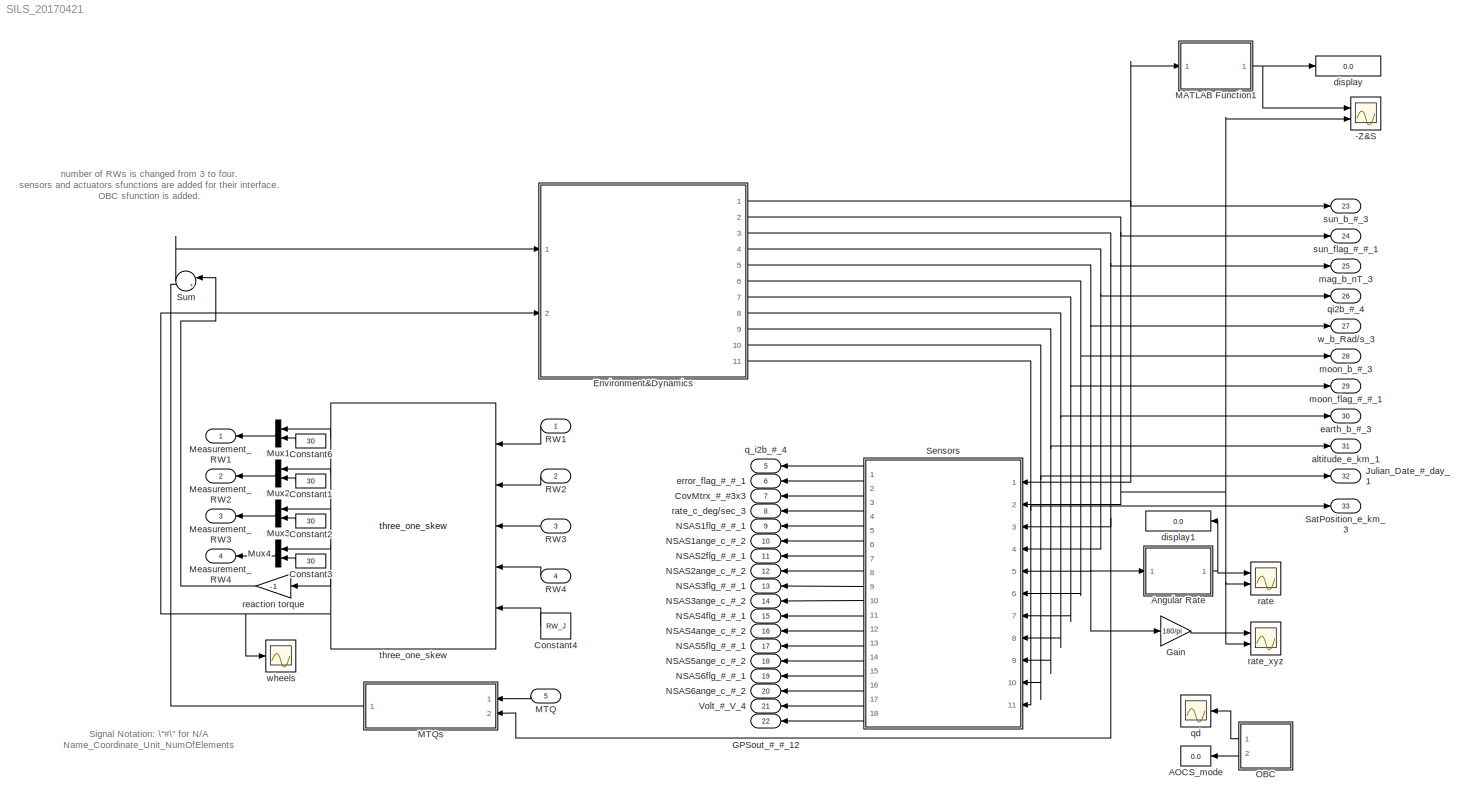
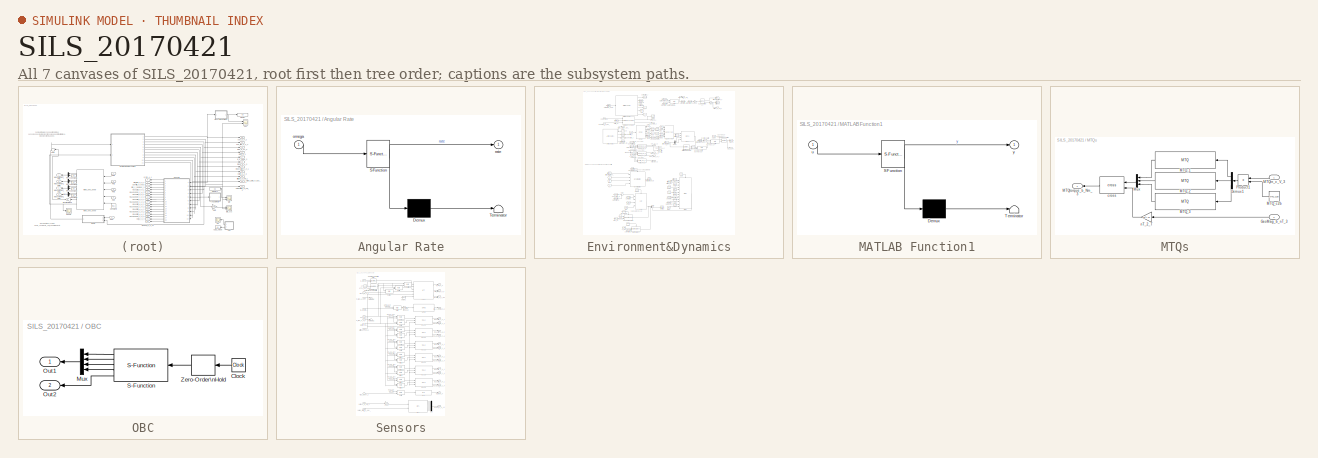
[diagram: thumbnail index - all 7 canvases of the model, root first then tree order]
MODEL SILS_20170421
KIND model
CONFIG PreLoadFcn = start\nmake_SILS\nparam_SW\nparam_sys\nparam_component\nparam_env\nparam_alignment\nOEread\ninitialCondition\n
BLOCK [Scope] -Z&S
  Floating = off
  NumInputPorts = 2
  Ports = [2]
  SID = 634
  ScopeSpecificationString = C++SS(StrPVP('Location','[33, 200, 738, 629]'),StrPVP('Open','off'),StrPVP('ZoomMode','yonly'),MxPVP('AxesTitles',54,'struct(''axes1'',''%<SignalLabel>'',''axes2'',''%<SignalLabel>'')'),MxPVP('ScopeGraphics',57,'struct(''FigureColor'',''[0.5 0.5 0.5]'',''AxesColor'',''[0 0 0]'',''AxesTickColor'',''[1 1 1]'',''LineColors'',''[1 1 0;1 0 1;0 1 1;1 0 0;0 1 0;0 0 1]'',''LineStyles'',''-|-|-|-|-|-'',''L...<+398ch>
BLOCK [Display] AOCS_mode
  Decimation = 1
  Ports = [1]
  SID = 581
BLOCK [SubSystem] Angular Rate
  ErrorFcn = Stateflow.Translate.translate
  PermitHierarchicalResolution = ExplicitOnly
  Ports = [1, 1]
  RequestExecContextInheritance = off
  SFBlockType = MATLAB Function
  SID = 635
  TreatAsAtomicUnit = on
BLOCK [Demux] Angular Rate/ Demux 
  Outputs = 1
  Ports = [1, 1]
  SID = 635::378
BLOCK [S-Function] Angular Rate/ SFunction 
  EnableBusSupport = on
  FunctionName = sf_sfun
  PortCounts = [1 2]
  Ports = [1, 2]
  SFcnIsStateOwnerBlock = off
  SFunctionDeploymentMode = off
  SID = 635::377
  Tag = Stateflow S-Function 6
BLOCK [Terminator] Angular Rate/ Terminator 
  SID = 635::379
BLOCK [Inport] Angular Rate/omega
  SID = 635::1
BLOCK [Outport] Angular Rate/rate
  SID = 635::5
BLOCK [Constant] Constant1
  NameLocation = top
  SID = 550
  Value = 30
BLOCK [Constant] Constant2
  NameLocation = top
  SID = 553
  Value = 30
BLOCK [Constant] Constant3
  NameLocation = top
  SID = 556
  Value = 30
BLOCK [Constant] Constant4
  NameLocation = top
  SID = 559
  Value = RW_J
BLOCK [Constant] Constant6
  NameLocation = top
  SID = 547
  Value = 30
BLOCK [Outport] CovMtrx_#_#3x3
  NameLocation = top
  Port = 7
  SID = 668
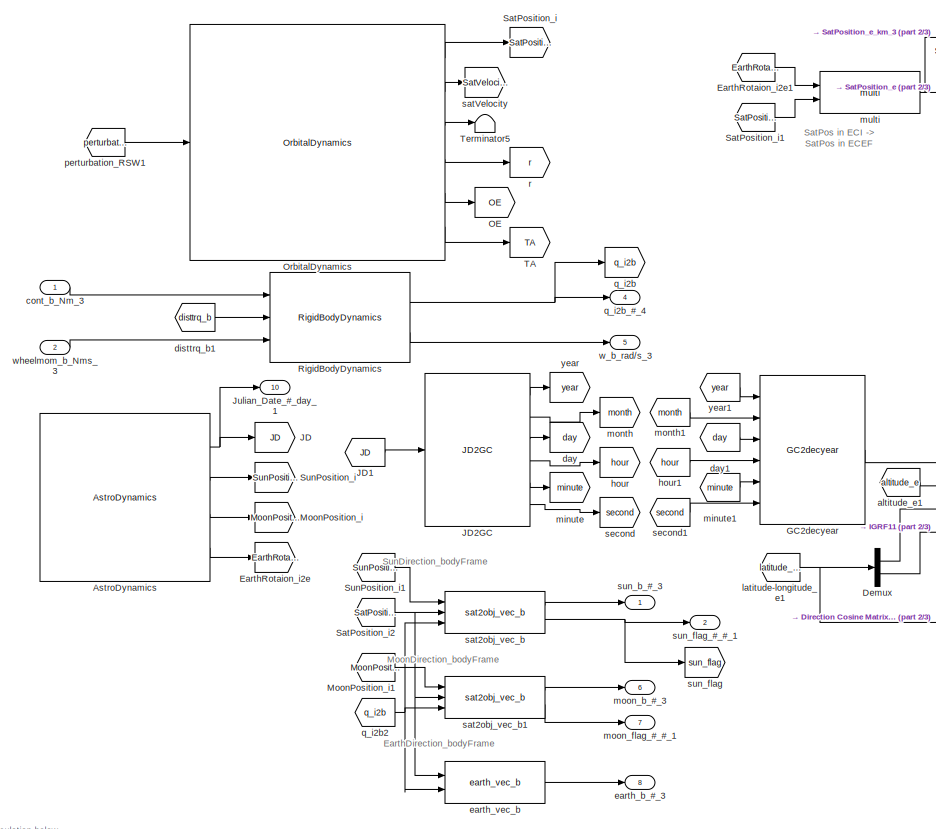
[diagram: Environment&Dynamics - part 1/3, top center region]
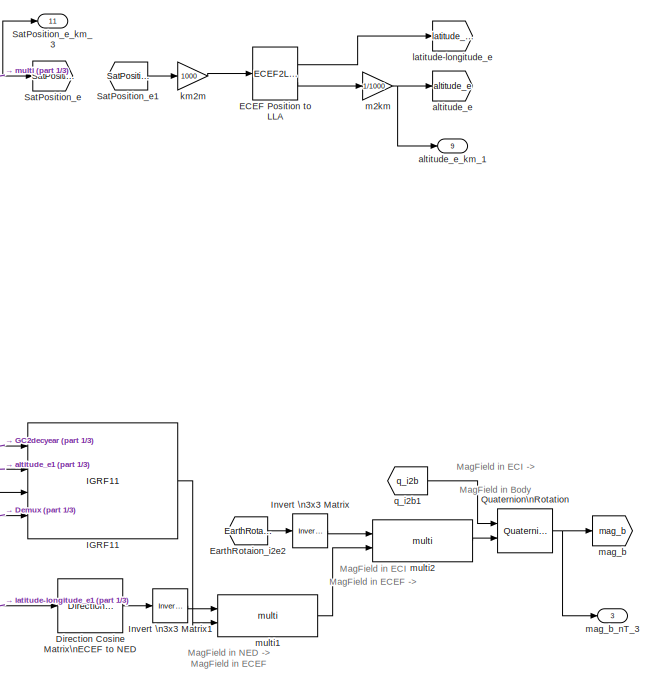
[diagram: Environment&Dynamics - part 2/3, top right region]
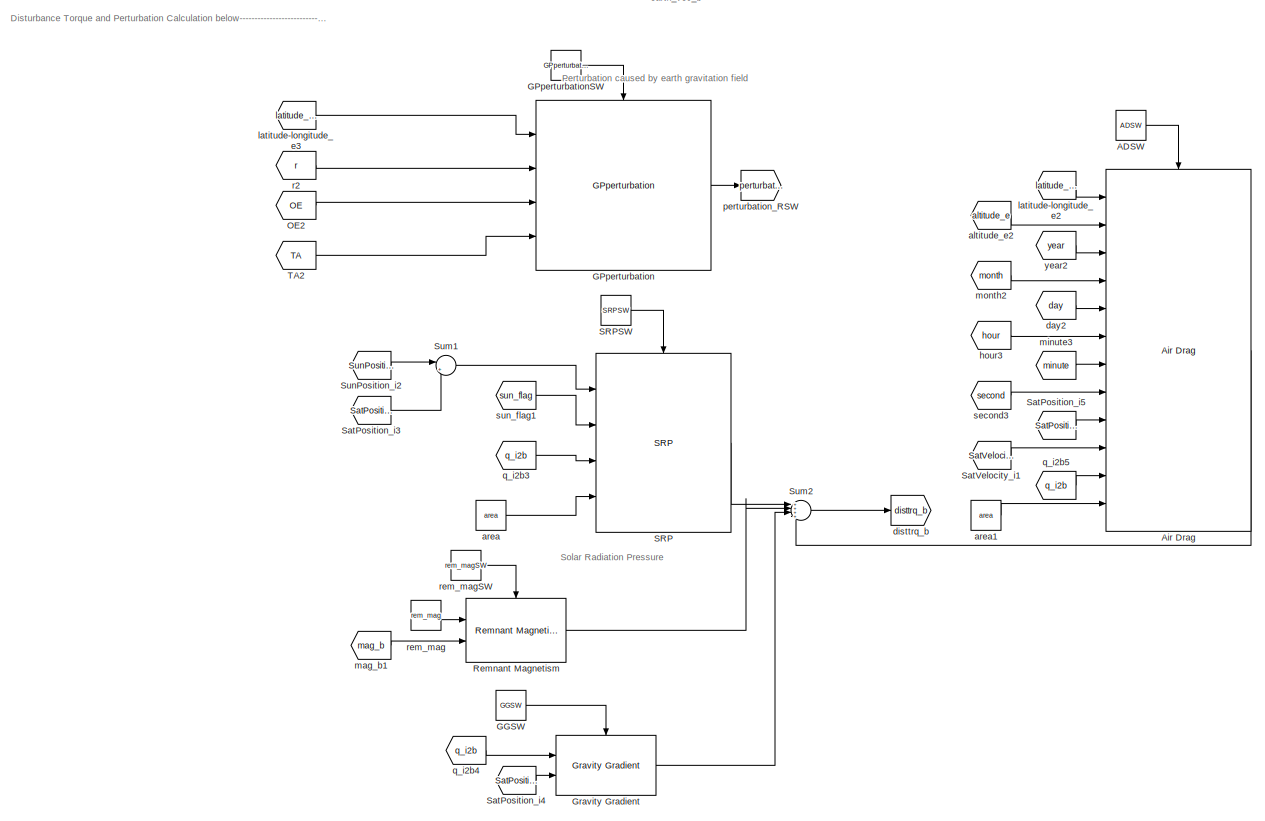
[diagram: Environment&Dynamics - part 3/3, bottom center region]
BLOCK [SubSystem] Environment&Dynamics
  Ports = [2, 11]
  RequestExecContextInheritance = off
  SID = 102
BLOCK [Constant] Environment&Dynamics/ADSW
  SID = 423
  Value = ADSW
BLOCK [Reference] Environment&Dynamics/Air Drag  REF=lib_env/Environment&Dynamics/Air Drag  (lib defined in mdl_9d5cf06e00da)
  AllowZeroVariantControls = off
  AutoFrameSizeCalculation = off
  Latency = 0
  Ports = [12, 1, 1]
  PropagateVariantConditions = off
  RTWMemSecDataConstants = Inherit from model
  RTWMemSecDataInternal = Inherit from model
  RTWMemSecDataParameters = Inherit from model
  RTWMemSecFuncExecute = Inherit from model
  RTWMemSecFuncInitTerm = Inherit from model
  SID = 424
  ShowPortLabels = FromPortIcon
  SourceBlock = lib_env/Environment&Dynamics/Air Drag
  SourceType = SubSystem
  SystemSampleTime = -1
  VariantActivationTime = update diagram
BLOCK [Reference] Environment&Dynamics/AstroDynamics  REF=lib_env/Environment&Dynamics/AstroDynamics  (lib defined in mdl_9d5cf06e00da)
  AllowZeroVariantControls = off
  AutoFrameSizeCalculation = off
  Latency = 0
  Ports = [0, 4]
  PropagateVariantConditions = off
  RTWMemSecDataConstants = Inherit from model
  RTWMemSecDataInternal = Inherit from model
  RTWMemSecDataParameters = Inherit from model
  RTWMemSecFuncExecute = Inherit from model
  RTWMemSecFuncInitTerm = Inherit from model
  SID = 162
  ShowPortLabels = FromPortIcon
  SourceBlock = lib_env/Environment&Dynamics/AstroDynamics
  SourceType = SubSystem
  SystemSampleTime = -1
  VariantActivationTime = update diagram
BLOCK [Demux] Environment&Dynamics/Demux
  Outputs = 2
  Ports = [1, 2]
  SID = 168
BLOCK [Reference] Environment&Dynamics/Direction Cosine Matrix\nECEF to NED  REF=aerolibtransform2/Direction Cosine Matrix\nECEF to NED
  Ports = [1, 1]
  RTWMemSecDataConstants = Inherit from model
  RTWMemSecDataInternal = Inherit from model
  RTWMemSecDataParameters = Inherit from model
  RTWMemSecFuncExecute = Inherit from model
  RTWMemSecFuncInitTerm = Inherit from model
  SID = 169
  SourceBlock = aerolibtransform2/Direction Cosine Matrix\nECEF to NED
  SourceProductBaseCode = AE
  SourceType = DCM ECEF to NED
BLOCK [ECEF2LLA] Environment&Dynamics/ECEF Position to LLA
  Ports = [1, 2]
  R = 6378137
  SID = 170
BLOCK [Goto] Environment&Dynamics/EarthRotaion_i2e
  GotoTag = EarthRotaion_i2e
  SID = 163
BLOCK [From] Environment&Dynamics/EarthRotaion_i2e1
  GotoTag = EarthRotaion_i2e
  SID = 171
BLOCK [From] Environment&Dynamics/EarthRotaion_i2e2
  GotoTag = EarthRotaion_i2e
  SID = 172
BLOCK [Reference] Environment&Dynamics/GC2decyear  REF=lib_util/GC2decyear  (lib defined in mdl_263c60253fa7)
  AllowZeroVariantControls = off
  AutoFrameSizeCalculation = off
  Latency = 0
  Ports = [6, 1]
  PropagateVariantConditions = off
  RTWMemSecDataConstants = Inherit from model
  RTWMemSecDataInternal = Inherit from model
  RTWMemSecDataParameters = Inherit from model
  RTWMemSecFuncExecute = Inherit from model
  RTWMemSecFuncInitTerm = Inherit from model
  SID = 173
  ShowPortLabels = FromPortIcon
  SourceBlock = lib_util/GC2decyear
  SourceType = SubSystem
  SystemSampleTime = -1
  VariantActivationTime = update diagram
BLOCK [Constant] Environment&Dynamics/GGSW
  SID = 425
  Value = GGSW
BLOCK [Reference] Environment&Dynamics/GPperturbation  REF=lib_env/Environment&Dynamics/GPperturbation  (lib defined in mdl_9d5cf06e00da)
  AllowZeroVariantControls = off
  AutoFrameSizeCalculation = off
  Latency = 0
  Ports = [4, 1, 1]
  PropagateVariantConditions = off
  RTWMemSecDataConstants = Inherit from model
  RTWMemSecDataInternal = Inherit from model
  RTWMemSecDataParameters = Inherit from model
  RTWMemSecFuncExecute = Inherit from model
  RTWMemSecFuncInitTerm = Inherit from model
  SID = 426
  ShowPortLabels = FromPortIcon
  SourceBlock = lib_env/Environment&Dynamics/GPperturbation
  SourceType = SubSystem
  SystemSampleTime = -1
  VariantActivationTime = update diagram
BLOCK [Constant] Environment&Dynamics/GPperturbationSW
  SID = 427
  Value = GPperturbationSW
BLOCK [Reference] Environment&Dynamics/Gravity Gradient  REF=lib_env/Environment&Dynamics/Gravity Gradient  (lib defined in mdl_9d5cf06e00da)
  AllowZeroVariantControls = off
  AutoFrameSizeCalculation = off
  Latency = 0
  Ports = [2, 1, 1]
  PropagateVariantConditions = off
  RTWMemSecDataConstants = Inherit from model
  RTWMemSecDataInternal = Inherit from model
  RTWMemSecDataParameters = Inherit from model
  RTWMemSecFuncExecute = Inherit from model
  RTWMemSecFuncInitTerm = Inherit from model
  SID = 428
  ShowPortLabels = FromPortIcon
  SourceBlock = lib_env/Environment&Dynamics/Gravity Gradient
  SourceType = SubSystem
  SystemSampleTime = -1
  VariantActivationTime = update diagram
BLOCK [Reference] Environment&Dynamics/IGRF11  REF=lib_env/IGRF11  (lib defined in mdl_9d5cf06e00da)
  AllowZeroVariantControls = off
  AutoFrameSizeCalculation = off
  Latency = 0
  Ports = [4, 1]
  PropagateVariantConditions = off
  RTWMemSecDataConstants = Inherit from model
  RTWMemSecDataInternal = Inherit from model
  RTWMemSecDataParameters = Inherit from model
  RTWMemSecFuncExecute = Inherit from model
  RTWMemSecFuncInitTerm = Inherit from model
  SID = 174
  ShowPortLabels = FromPortIcon
  SourceBlock = lib_env/IGRF11
  SourceType = SubSystem
  SystemSampleTime = -1
  VariantActivationTime = update diagram
BLOCK [Reference] Environment&Dynamics/Invert \n3x3 Matrix  REF=aerolibutil/Invert \n3x3 Matrix
  Ports = [1, 1]
  RTWMemSecDataConstants = Inherit from model
  RTWMemSecDataInternal = Inherit from model
  RTWMemSecDataParameters = Inherit from model
  RTWMemSecFuncExecute = Inherit from model
  RTWMemSecFuncInitTerm = Inherit from model
  SID = 175
  SourceBlock = aerolibutil/Invert \n3x3 Matrix
  SourceProductBaseCode = AE
  SourceType = Invert 3x3 Matrix
BLOCK [Reference] Environment&Dynamics/Invert \n3x3 Matrix1  REF=aerolibutil/Invert \n3x3 Matrix
  Ports = [1, 1]
  RTWMemSecDataConstants = Inherit from model
  RTWMemSecDataInternal = Inherit from model
  RTWMemSecDataParameters = Inherit from model
  RTWMemSecFuncExecute = Inherit from model
  RTWMemSecFuncInitTerm = Inherit from model
  SID = 176
  SourceBlock = aerolibutil/Invert \n3x3 Matrix
  SourceProductBaseCode = AE
  SourceType = Invert 3x3 Matrix
BLOCK [Goto] Environment&Dynamics/JD
  GotoTag = JD
  SID = 164
BLOCK [From] Environment&Dynamics/JD1
  GotoTag = JD
  SID = 177
BLOCK [Reference] Environment&Dynamics/JD2GC  REF=lib_util/JD2GC  (lib defined in mdl_263c60253fa7)
  AllowZeroVariantControls = off
  AutoFrameSizeCalculation = off
  Latency = 0
  Ports = [1, 6]
  PropagateVariantConditions = off
  RTWMemSecDataConstants = Inherit from model
  RTWMemSecDataInternal = Inherit from model
  RTWMemSecDataParameters = Inherit from model
  RTWMemSecFuncExecute = Inherit from model
  RTWMemSecFuncInitTerm = Inherit from model
  SID = 178
  ShowPortLabels = FromPortIcon
  SourceBlock = lib_util/JD2GC
  SourceType = SubSystem
  SystemSampleTime = -1
  VariantActivationTime = update diagram
BLOCK [Outport] Environment&Dynamics/Julian_Date_#_day_1
  Port = 10
  SID = 344
BLOCK [Goto] Environment&Dynamics/MoonPosition_i
  GotoTag = MoonPosition_i
  SID = 253
BLOCK [From] Environment&Dynamics/MoonPosition_i1
  GotoTag = MoonPosition_i
  SID = 240
BLOCK [Goto] Environment&Dynamics/OE
  GotoTag = OE
  SID = 463
BLOCK [From] Environment&Dynamics/OE2
  GotoTag = OE
  SID = 429
BLOCK [Reference] Environment&Dynamics/OrbitalDynamics  REF=lib_env/Environment&Dynamics/OrbitalDynamics  (lib defined in mdl_9d5cf06e00da)
  AllowZeroVariantControls = off
  AutoFrameSizeCalculation = off
  Latency = 0
  Ports = [1, 6]
  PropagateVariantConditions = off
  RTWMemSecDataConstants = Inherit from model
  RTWMemSecDataInternal = Inherit from model
  RTWMemSecDataParameters = Inherit from model
  RTWMemSecFuncExecute = Inherit from model
  RTWMemSecFuncInitTerm = Inherit from model
  SID = 119
  ShowPortLabels = FromPortIcon
  SourceBlock = lib_env/Environment&Dynamics/OrbitalDynamics
  SourceType = SubSystem
  SystemSampleTime = -1
  VariantActivationTime = update diagram
BLOCK [Reference] Environment&Dynamics/Quaternion\nRotation  REF=aerolibutil/Quaternion\nRotation
  Ports = [2, 1]
  RTWMemSecDataConstants = Inherit from model
  RTWMemSecDataInternal = Inherit from model
  RTWMemSecDataParameters = Inherit from model
  RTWMemSecFuncExecute = Inherit from model
  RTWMemSecFuncInitTerm = Inherit from model
  SID = 180
  SourceBlock = aerolibutil/Quaternion\nRotation
  SourceProductBaseCode = AE
  SourceType = Quaternion Rotation
BLOCK [Reference] Environment&Dynamics/Remnant Magnetism  REF=lib_env/Environment&Dynamics/Remnant Magnetism  (lib defined in mdl_9d5cf06e00da)
  AllowZeroVariantControls = off
  AutoFrameSizeCalculation = off
  Latency = 0
  Ports = [2, 1, 1]
  PropagateVariantConditions = off
  RTWMemSecDataConstants = Inherit from model
  RTWMemSecDataInternal = Inherit from model
  RTWMemSecDataParameters = Inherit from model
  RTWMemSecFuncExecute = Inherit from model
  RTWMemSecFuncInitTerm = Inherit from model
  SID = 430
  ShowPortLabels = FromPortIcon
  SourceBlock = lib_env/Environment&Dynamics/Remnant Magnetism
  SourceType = SubSystem
  SystemSampleTime = -1
  VariantActivationTime = update diagram
BLOCK [Reference] Environment&Dynamics/RigidBodyDynamics  REF=lib_env/Environment&Dynamics/RigidBodyDynamics  (lib defined in mdl_9d5cf06e00da)
  AllowZeroVariantControls = off
  AutoFrameSizeCalculation = off
  Latency = 0
  Ports = [3, 2]
  PropagateVariantConditions = off
  RTWMemSecDataConstants = Inherit from model
  RTWMemSecDataInternal = Inherit from model
  RTWMemSecDataParameters = Inherit from model
  RTWMemSecFuncExecute = Inherit from model
  RTWMemSecFuncInitTerm = Inherit from model
  SID = 120
  ShowPortLabels = FromPortIcon
  SourceBlock = lib_env/Environment&Dynamics/RigidBodyDynamics
  SourceType = SubSystem
  SystemSampleTime = -1
  VariantActivationTime = update diagram
BLOCK [Reference] Environment&Dynamics/SRP  REF=lib_env/Environment&Dynamics/SRP  (lib defined in mdl_9d5cf06e00da)
  AllowZeroVariantControls = off
  AutoFrameSizeCalculation = off
  Latency = 0
  Ports = [4, 1, 1]
  PropagateVariantConditions = off
  RTWMemSecDataConstants = Inherit from model
  RTWMemSecDataInternal = Inherit from model
  RTWMemSecDataParameters = Inherit from model
  RTWMemSecFuncExecute = Inherit from model
  RTWMemSecFuncInitTerm = Inherit from model
  SID = 431
  ShowPortLabels = FromPortIcon
  SourceBlock = lib_env/Environment&Dynamics/SRP
  SourceType = SubSystem
  SystemSampleTime = -1
  VariantActivationTime = update diagram
BLOCK [Constant] Environment&Dynamics/SRPSW
  SID = 432
  Value = SRPSW
BLOCK [Goto] Environment&Dynamics/SatPosition_e
  GotoTag = SatPosition_e
  SID = 181
BLOCK [From] Environment&Dynamics/SatPosition_e1
  GotoTag = SatPosition_e
  SID = 182
BLOCK [Outport] Environment&Dynamics/SatPosition_e_km_3
  Port = 11
  SID = 104
BLOCK [Goto] Environment&Dynamics/SatPosition_i
  GotoTag = SatPosition_i
  SID = 227
BLOCK [From] Environment&Dynamics/SatPosition_i1
  GotoTag = SatPosition_i
  SID = 183
BLOCK [From] Environment&Dynamics/SatPosition_i2
  GotoTag = SatPosition_i
  SID = 241
BLOCK [From] Environment&Dynamics/SatPosition_i3
  GotoTag = SatPosition_i
  SID = 433
BLOCK [From] Environment&Dynamics/SatPosition_i4
  GotoTag = SatPosition_i
  SID = 434
BLOCK [From] Environment&Dynamics/SatPosition_i5
  GotoTag = SatPosition_i
  SID = 435
BLOCK [From] Environment&Dynamics/SatVelocity_i1
  GotoTag = SatVelocity_i
  SID = 436
BLOCK [Sum] Environment&Dynamics/Sum1
  Inputs = |+-
  Ports = [2, 1]
  SID = 437
BLOCK [Sum] Environment&Dynamics/Sum2
  Inputs = ++++
  Ports = [4, 1]
  SID = 438
BLOCK [Goto] Environment&Dynamics/SunPosition_i
  GotoTag = SunPosition_i
  SID = 254
BLOCK [From] Environment&Dynamics/SunPosition_i1
  GotoTag = SunPosition_i
  SID = 242
BLOCK [From] Environment&Dynamics/SunPosition_i2
  GotoTag = SunPosition_i
  SID = 439
BLOCK [Goto] Environment&Dynamics/TA
  GotoTag = TA
  SID = 465
BLOCK [From] Environment&Dynamics/TA2
  GotoTag = TA
  SID = 440
BLOCK [Terminator] Environment&Dynamics/Terminator5
  SID = 345
BLOCK [Goto] Environment&Dynamics/altitude_e
  GotoTag = altitude_e
  SID = 186
BLOCK [From] Environment&Dynamics/altitude_e1
  GotoTag = altitude_e
  SID = 187
BLOCK [From] Environment&Dynamics/altitude_e2
  GotoTag = altitude_e
  SID = 441
BLOCK [Outport] Environment&Dynamics/altitude_e_km_1
  Port = 9
  SID = 343
BLOCK [Constant] Environment&Dynamics/area
  SID = 442
  Value = area
BLOCK [Constant] Environment&Dynamics/area1
  SID = 443
  Value = area
BLOCK [Inport] Environment&Dynamics/cont_b_Nm_3
  SID = 105
BLOCK [Goto] Environment&Dynamics/day
  GotoTag = day
  SID = 188
BLOCK [From] Environment&Dynamics/day1
  GotoTag = day
  SID = 189
BLOCK [From] Environment&Dynamics/day2
  GotoTag = day
  SID = 444
BLOCK [Goto] Environment&Dynamics/disttrq_b
  GotoTag = disttrq_b
  SID = 445
BLOCK [From] Environment&Dynamics/disttrq_b1
  GotoTag = disttrq_b
  SID = 469
BLOCK [Outport] Environment&Dynamics/earth_b_#_3
  Port = 8
  SID = 252
BLOCK [Reference] Environment&Dynamics/earth_vec_b  REF=lib_orbittrance/earth_vec_b  (lib defined in mdl_e1987a65d5b0)
  AllowZeroVariantControls = off
  AutoFrameSizeCalculation = off
  Latency = 0
  Ports = [2, 1]
  PropagateVariantConditions = off
  RTWMemSecDataConstants = Inherit from model
  RTWMemSecDataInternal = Inherit from model
  RTWMemSecDataParameters = Inherit from model
  RTWMemSecFuncExecute = Inherit from model
  RTWMemSecFuncInitTerm = Inherit from model
  SID = 243
  ShowPortLabels = FromPortIcon
  SourceBlock = lib_orbittrance/earth_vec_b
  SourceType = SubSystem
  SystemSampleTime = -1
  VariantActivationTime = update diagram
BLOCK [Goto] Environment&Dynamics/hour
  GotoTag = hour
  SID = 191
BLOCK [From] Environment&Dynamics/hour1
  GotoTag = hour
  SID = 192
BLOCK [From] Environment&Dynamics/hour3
  GotoTag = hour
  SID = 446
BLOCK [Gain] Environment&Dynamics/km2m
  Gain = 1000
  SID = 193
BLOCK [Goto] Environment&Dynamics/latitude-longitude_e
  GotoTag = latitude_longitude_e
  SID = 194
BLOCK [From] Environment&Dynamics/latitude-longitude_e1
  GotoTag = latitude_longitude_e
  SID = 195
BLOCK [From] Environment&Dynamics/latitude-longitude_e2
  GotoTag = latitude_longitude_e
  SID = 447
BLOCK [From] Environment&Dynamics/latitude-longitude_e3
  GotoTag = latitude_longitude_e
  SID = 448
BLOCK [Gain] Environment&Dynamics/m2km
  Gain = 1/1000
  SID = 196
BLOCK [Goto] Environment&Dynamics/mag_b
  GotoTag = mag_b
  SID = 466
BLOCK [From] Environment&Dynamics/mag_b1
  GotoTag = mag_b
  SID = 449
BLOCK [Outport] Environment&Dynamics/mag_b_nT_3
  Port = 3
  SID = 216
BLOCK [Goto] Environment&Dynamics/minute
  GotoTag = minute
  SID = 198
BLOCK [From] Environment&Dynamics/minute1
  GotoTag = minute
  SID = 199
BLOCK [From] Environment&Dynamics/minute3
  GotoTag = minute
  SID = 450
BLOCK [Goto] Environment&Dynamics/month
  GotoTag = month
  SID = 200
BLOCK [From] Environment&Dynamics/month1
  GotoTag = month
  SID = 201
BLOCK [From] Environment&Dynamics/month2
  GotoTag = month
  SID = 451
BLOCK [Outport] Environment&Dynamics/moon_b_#_3
  Port = 6
  SID = 250
BLOCK [Outport] Environment&Dynamics/moon_flag_#_#_1
  Port = 7
  SID = 251
BLOCK [Reference] Environment&Dynamics/multi  REF=lib_util/multi  (lib defined in mdl_263c60253fa7)
  AllowZeroVariantControls = off
  AutoFrameSizeCalculation = off
  Latency = 0
  Ports = [2, 1]
  PropagateVariantConditions = off
  RTWMemSecDataConstants = Inherit from model
  RTWMemSecDataInternal = Inherit from model
  RTWMemSecDataParameters = Inherit from model
  RTWMemSecFuncExecute = Inherit from model
  RTWMemSecFuncInitTerm = Inherit from model
  SID = 222
  ShowPortLabels = FromPortIcon
  SourceBlock = lib_util/multi
  SourceType = SubSystem
  SystemSampleTime = -1
  VariantActivationTime = update diagram
BLOCK [Reference] Environment&Dynamics/multi1  REF=lib_util/multi  (lib defined in mdl_263c60253fa7)
  AllowZeroVariantControls = off
  AutoFrameSizeCalculation = off
  Latency = 0
  Ports = [2, 1]
  PropagateVariantConditions = off
  RTWMemSecDataConstants = Inherit from model
  RTWMemSecDataInternal = Inherit from model
  RTWMemSecDataParameters = Inherit from model
  RTWMemSecFuncExecute = Inherit from model
  RTWMemSecFuncInitTerm = Inherit from model
  SID = 203
  ShowPortLabels = FromPortIcon
  SourceBlock = lib_util/multi
  SourceType = SubSystem
  SystemSampleTime = -1
  VariantActivationTime = update diagram
BLOCK [Reference] Environment&Dynamics/multi2  REF=lib_util/multi  (lib defined in mdl_263c60253fa7)
  AllowZeroVariantControls = off
  AutoFrameSizeCalculation = off
  Latency = 0
  Ports = [2, 1]
  PropagateVariantConditions = off
  RTWMemSecDataConstants = Inherit from model
  RTWMemSecDataInternal = Inherit from model
  RTWMemSecDataParameters = Inherit from model
  RTWMemSecFuncExecute = Inherit from model
  RTWMemSecFuncInitTerm = Inherit from model
  SID = 204
  ShowPortLabels = FromPortIcon
  SourceBlock = lib_util/multi
  SourceType = SubSystem
  SystemSampleTime = -1
  VariantActivationTime = update diagram
BLOCK [Goto] Environment&Dynamics/perturbation_RSW
  GotoTag = perturbation_RSW
  SID = 452
BLOCK [From] Environment&Dynamics/perturbation_RSW1
  GotoTag = perturbation_RSW
  SID = 470
BLOCK [Goto] Environment&Dynamics/q_i2b
  GotoTag = q_i2b
  SID = 232
BLOCK [From] Environment&Dynamics/q_i2b1
  GotoTag = q_i2b
  SID = 205
BLOCK [From] Environment&Dynamics/q_i2b2
  GotoTag = q_i2b
  SID = 244
BLOCK [From] Environment&Dynamics/q_i2b3
  GotoTag = q_i2b
  SID = 453
BLOCK [From] Environment&Dynamics/q_i2b4
  GotoTag = q_i2b
  SID = 454
BLOCK [From] Environment&Dynamics/q_i2b5
  GotoTag = q_i2b
  SID = 455
BLOCK [Outport] Environment&Dynamics/q_i2b_#_4
  Port = 4
  SID = 110
BLOCK [Goto] Environment&Dynamics/r
  GotoTag = r
  SID = 467
BLOCK [From] Environment&Dynamics/r2
  GotoTag = r
  SID = 457
BLOCK [Constant] Environment&Dynamics/rem_mag
  SID = 458
  Value = rem_mag
BLOCK [Constant] Environment&Dynamics/rem_magSW
  SID = 459
  Value = rem_magSW
BLOCK [Reference] Environment&Dynamics/sat2obj_vec_b  REF=lib_orbittrance/sat2obj_vec_b  (lib defined in mdl_e1987a65d5b0)
  AllowZeroVariantControls = off
  AutoFrameSizeCalculation = off
  Latency = 0
  Ports = [3, 2]
  PropagateVariantConditions = off
  RTWMemSecDataConstants = Inherit from model
  RTWMemSecDataInternal = Inherit from model
  RTWMemSecDataParameters = Inherit from model
  RTWMemSecFuncExecute = Inherit from model
  RTWMemSecFuncInitTerm = Inherit from model
  SID = 245
  ShowPortLabels = FromPortIcon
  SourceBlock = lib_orbittrance/sat2obj_vec_b
  SourceType = SubSystem
  SystemSampleTime = -1
  VariantActivationTime = update diagram
BLOCK [Reference] Environment&Dynamics/sat2obj_vec_b1  REF=lib_orbittrance/sat2obj_vec_b  (lib defined in mdl_e1987a65d5b0)
  AllowZeroVariantControls = off
  AutoFrameSizeCalculation = off
  Latency = 0
  Ports = [3, 2]
  PropagateVariantConditions = off
  RTWMemSecDataConstants = Inherit from model
  RTWMemSecDataInternal = Inherit from model
  RTWMemSecDataParameters = Inherit from model
  RTWMemSecFuncExecute = Inherit from model
  RTWMemSecFuncInitTerm = Inherit from model
  SID = 246
  ShowPortLabels = FromPortIcon
  SourceBlock = lib_orbittrance/sat2obj_vec_b
  SourceType = SubSystem
  SystemSampleTime = -1
  VariantActivationTime = update diagram
BLOCK [Goto] Environment&Dynamics/satVelocity
  GotoTag = SatVelocity_i
  SID = 464
BLOCK [Goto] Environment&Dynamics/second
  GotoTag = second
  SID = 209
BLOCK [From] Environment&Dynamics/second1
  GotoTag = second
  SID = 210
BLOCK [From] Environment&Dynamics/second3
  GotoTag = second
  SID = 460
BLOCK [Outport] Environment&Dynamics/sun_b_#_3
  SID = 248
BLOCK [Goto] Environment&Dynamics/sun_flag
  GotoTag = sun_flag
  SID = 468
BLOCK [From] Environment&Dynamics/sun_flag1
  GotoTag = sun_flag
  SID = 461
BLOCK [Outport] Environment&Dynamics/sun_flag_#_#_1
  Port = 2
  SID = 249
BLOCK [Outport] Environment&Dynamics/w_b_rad//s_3
  Port = 5
  SID = 115
BLOCK [Inport] Environment&Dynamics/wheelmom_b_Nms_3
  Port = 2
  SID = 109
BLOCK [Goto] Environment&Dynamics/year
  GotoTag = year
  SID = 212
BLOCK [From] Environment&Dynamics/year1
  GotoTag = year
  SID = 213
BLOCK [From] Environment&Dynamics/year2
  GotoTag = year
  SID = 462
BLOCK [Outport] GPSout_#_#_12
  NameLocation = top
  Port = 22
  SID = 683
BLOCK [Gain] Gain
  Gain = 180/pi
  SID = 579
BLOCK [Outport] Julian_Date_#_day_1
  NameLocation = top
  Port = 32
  SID = 693
BLOCK [SubSystem] MATLAB Function1
  ErrorFcn = Stateflow.Translate.translate
  PermitHierarchicalResolution = ExplicitOnly
  Ports = [1, 1]
  RequestExecContextInheritance = off
  SFBlockType = MATLAB Function
  SID = 633
  TreatAsAtomicUnit = on
BLOCK [Demux] MATLAB Function1/ Demux 
  Outputs = 1
  Ports = [1, 1]
  SID = 633::30
BLOCK [S-Function] MATLAB Function1/ SFunction 
  EnableBusSupport = on
  FunctionName = sf_sfun
  PortCounts = [1 2]
  Ports = [1, 2]
  SFcnIsStateOwnerBlock = off
  SFunctionDeploymentMode = off
  SID = 633::29
  Tag = Stateflow S-Function 28
BLOCK [Terminator] MATLAB Function1/ Terminator 
  SID = 633::31
BLOCK [Inport] MATLAB Function1/u
  SID = 633::1
BLOCK [Outport] MATLAB Function1/y
  SID = 633::5
BLOCK [Inport] MTQ
  NameLocation = top
  Port = 5
  SID = 656
BLOCK [SubSystem] MTQs
  Ports = [2, 1]
  RequestExecContextInheritance = off
  SID = 347
BLOCK [Demux] MTQs/Demux1
  Outputs = 3
  Ports = [1, 3]
  SID = 352
BLOCK [Inport] MTQs/GeoMag_b_nT_3
  Port = 2
  SID = 351
BLOCK [Reference] MTQs/MTQ_1  REF=lib_component/MTQ  (lib defined in mdl_fb77b1e06893)
  AllowZeroVariantControls = off
  AutoFrameSizeCalculation = off
  Latency = 0
  Ports = [1, 1]
  PropagateVariantConditions = off
  RTWMemSecDataConstants = Inherit from model
  RTWMemSecDataInternal = Inherit from model
  RTWMemSecDataParameters = Inherit from model
  RTWMemSecFuncExecute = Inherit from model
  RTWMemSecFuncInitTerm = Inherit from model
  SID = 353
  ShowPortLabels = FromPortIcon
  SourceBlock = lib_component/MTQ
  SourceType = SubSystem
  SystemSampleTime = -1
  VariantActivationTime = update diagram
BLOCK [Reference] MTQs/MTQ_2  REF=lib_component/MTQ  (lib defined in mdl_fb77b1e06893)
  AllowZeroVariantControls = off
  AutoFrameSizeCalculation = off
  Latency = 0
  Ports = [1, 1]
  PropagateVariantConditions = off
  RTWMemSecDataConstants = Inherit from model
  RTWMemSecDataInternal = Inherit from model
  RTWMemSecDataParameters = Inherit from model
  RTWMemSecFuncExecute = Inherit from model
  RTWMemSecFuncInitTerm = Inherit from model
  SID = 354
  ShowPortLabels = FromPortIcon
  SourceBlock = lib_component/MTQ
  SourceType = SubSystem
  SystemSampleTime = -1
  VariantActivationTime = update diagram
BLOCK [Reference] MTQs/MTQ_3  REF=lib_component/MTQ  (lib defined in mdl_fb77b1e06893)
  AllowZeroVariantControls = off
  AutoFrameSizeCalculation = off
  Latency = 0
  Ports = [1, 1]
  PropagateVariantConditions = off
  RTWMemSecDataConstants = Inherit from model
  RTWMemSecDataInternal = Inherit from model
  RTWMemSecDataParameters = Inherit from model
  RTWMemSecFuncExecute = Inherit from model
  RTWMemSecFuncInitTerm = Inherit from model
  SID = 355
  ShowPortLabels = FromPortIcon
  SourceBlock = lib_component/MTQ
  SourceType = SubSystem
  SystemSampleTime = -1
  VariantActivationTime = update diagram
BLOCK [Constant] MTQs/MTQ_c2b
  SID = 356
  Value = MTQ_c2b
BLOCK [Inport] MTQs/MTQin_c_V_3
  SID = 350
BLOCK [Outport] MTQs/MTQtorque_b_Nm_3
  SID = 349
BLOCK [Mux] MTQs/Mux
  DisplayOption = bar
  Inputs = 3
  Ports = [3, 1]
  SID = 357
BLOCK [Product] MTQs/Product1
  NameLocation = top
  Ports = [2, 1]
  RndMeth = Zero
  SID = 358
BLOCK [Reference] MTQs/cross  REF=lib_util/cross  (lib defined in mdl_263c60253fa7)
  AllowZeroVariantControls = off
  AutoFrameSizeCalculation = off
  Latency = 0
  Ports = [2, 1]
  PropagateVariantConditions = off
  RTWMemSecDataConstants = Inherit from model
  RTWMemSecDataInternal = Inherit from model
  RTWMemSecDataParameters = Inherit from model
  RTWMemSecFuncExecute = Inherit from model
  RTWMemSecFuncInitTerm = Inherit from model
  SID = 359
  ShowPortLabels = FromPortIcon
  SourceBlock = lib_util/cross
  SourceType = SubSystem
  SystemSampleTime = -1
  VariantActivationTime = update diagram
BLOCK [Gain] MTQs/nT_2_T
  Gain = 10^(-9)
  SID = 360
BLOCK [Outport] Measurement_RW1
  NameLocation = top
  SID = 662
BLOCK [Outport] Measurement_RW2
  NameLocation = top
  Port = 2
  SID = 663
BLOCK [Outport] Measurement_RW3
  NameLocation = top
  Port = 3
  SID = 664
BLOCK [Outport] Measurement_RW4
  NameLocation = top
  Port = 4
  SID = 665
BLOCK [Mux] Mux1
  DisplayOption = bar
  Inputs = 2
  NameLocation = top
  Ports = [2, 1]
  SID = 548
BLOCK [Mux] Mux2
  DisplayOption = bar
  Inputs = 2
  NameLocation = top
  Ports = [2, 1]
  SID = 551
BLOCK [Mux] Mux3
  DisplayOption = bar
  Inputs = 2
  NameLocation = top
  Ports = [2, 1]
  SID = 554
BLOCK [Mux] Mux4
  DisplayOption = bar
  Inputs = 2
  NameLocation = top
  Ports = [2, 1]
  SID = 557
BLOCK [Outport] NSAS1ange_c_#_2
  NameLocation = top
  Port = 10
  SID = 671
BLOCK [Outport] NSAS1flg_#_#_1
  NameLocation = top
  Port = 9
  SID = 670
BLOCK [Outport] NSAS2ange_c_#_2
  NameLocation = top
  Port = 12
  SID = 673
BLOCK [Outport] NSAS2flg_#_#_1
  NameLocation = top
  Port = 11
  SID = 672
BLOCK [Outport] NSAS3ange_c_#_2
  NameLocation = top
  Port = 14
  SID = 675
BLOCK [Outport] NSAS3flg_#_#_1
  NameLocation = top
  Port = 13
  SID = 674
BLOCK [Outport] NSAS4ange_c_#_2
  NameLocation = top
  Port = 16
  SID = 677
BLOCK [Outport] NSAS4flg_#_#_1
  NameLocation = top
  Port = 15
  SID = 676
BLOCK [Outport] NSAS5ange_c_#_2
  NameLocation = top
  Port = 18
  SID = 679
BLOCK [Outport] NSAS5flg_#_#_1
  NameLocation = top
  Port = 17
  SID = 678
BLOCK [Outport] NSAS6ange_c_#_2
  NameLocation = top
  Port = 20
  SID = 681
BLOCK [Outport] NSAS6flg_#_#_1
  NameLocation = top
  Port = 19
  SID = 680
BLOCK [SubSystem] OBC
  NameLocation = top
  Ports = [0, 2]
  RequestExecContextInheritance = off
  SID = 534
BLOCK [Clock] OBC/Clock
  NameLocation = top
  SID = 535
BLOCK [Mux] OBC/Mux
  DisplayOption = bar
  NameLocation = top
  Ports = [4, 1]
  SID = 536
BLOCK [Outport] OBC/Out1
  SID = 539
BLOCK [Outport] OBC/Out2
  Port = 2
  SID = 580
BLOCK [S-Function] OBC/S-Function
  EnableBusSupport = off
  FunctionName = sfunc_AOBC
  NameLocation = top
  Ports = [1, 5]
  SFcnIsStateOwnerBlock = off
  SFunctionDeploymentMode = off
  SID = 537
BLOCK [ZeroOrderHold] OBC/Zero-Order\nHold
  NameLocation = top
  SID = 538
  SampleTime = AOBC_dt
BLOCK [Inport] RW1
  NameLocation = top
  SID = 652
BLOCK [Inport] RW2
  NameLocation = top
  Port = 2
  SID = 653
BLOCK [Inport] RW3
  NameLocation = top
  Port = 3
  SID = 654
BLOCK [Inport] RW4
  NameLocation = top
  Port = 4
  SID = 655
BLOCK [Outport] SatPosition_e_km_3
  NameLocation = top
  Port = 33
  SID = 694
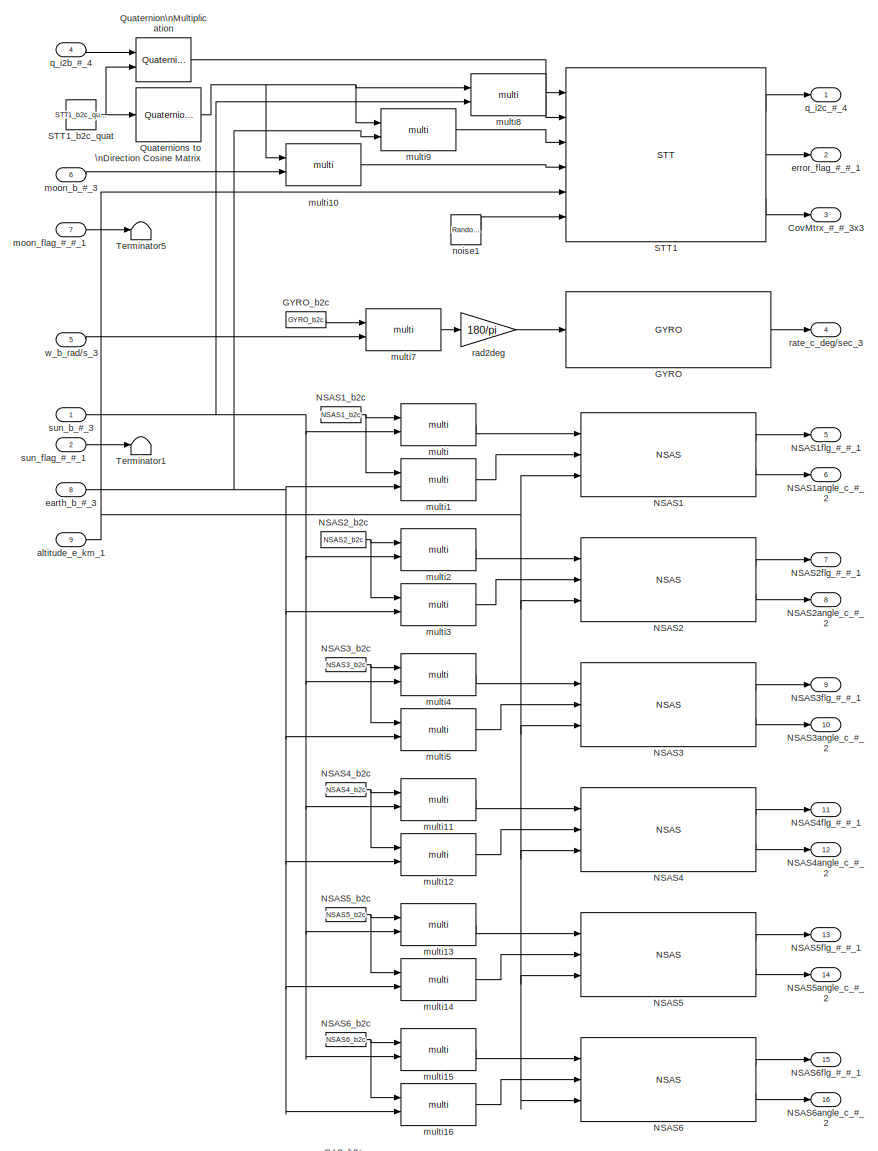
[diagram: Sensors - part 1/2, most of the canvas]
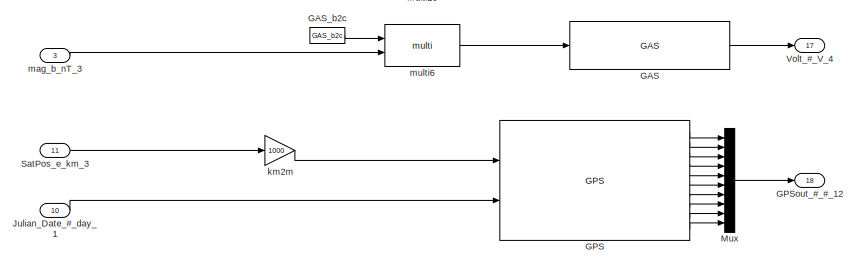
[diagram: Sensors - part 2/2, full width, bottom band]
BLOCK [SubSystem] Sensors
  Ports = [11, 18]
  RequestExecContextInheritance = off
  SID = 288
BLOCK [Outport] Sensors/CovMtrx_#_#_3x3
  Port = 3
  SID = 332
BLOCK [Reference] Sensors/GAS  REF=lib_component/GAS  (lib defined in mdl_fb77b1e06893)
  AllowZeroVariantControls = off
  AutoFrameSizeCalculation = off
  Latency = 0
  Ports = [1, 1]
  PropagateVariantConditions = off
  RTWMemSecDataConstants = Inherit from model
  RTWMemSecDataInternal = Inherit from model
  RTWMemSecDataParameters = Inherit from model
  RTWMemSecFuncExecute = Inherit from model
  RTWMemSecFuncInitTerm = Inherit from model
  SID = 300
  ShowPortLabels = FromPortIcon
  SourceBlock = lib_component/GAS
  SourceType = SubSystem
  SystemSampleTime = -1
  VariantActivationTime = update diagram
BLOCK [Constant] Sensors/GAS_b2c
  NameLocation = top
  SID = 301
  Value = GAS_b2c
  VectorParams1D = off
BLOCK [Reference] Sensors/GPS  REF=lib_component/GPS  (lib defined in mdl_fb77b1e06893)
  AllowZeroVariantControls = off
  AutoFrameSizeCalculation = off
  Latency = 0
  Ports = [2, 10]
  PropagateVariantConditions = off
  RTWMemSecDataConstants = Inherit from model
  RTWMemSecDataInternal = Inherit from model
  RTWMemSecDataParameters = Inherit from model
  RTWMemSecFuncExecute = Inherit from model
  RTWMemSecFuncInitTerm = Inherit from model
  SID = 302
  ShowPortLabels = FromPortIcon
  SourceBlock = lib_component/GPS
  SourceType = SubSystem
  SystemSampleTime = -1
  VariantActivationTime = update diagram
BLOCK [Outport] Sensors/GPSout_#_#_12
  Port = 18
  SID = 341
BLOCK [Reference] Sensors/GYRO  REF=lib_component/GYRO  (lib defined in mdl_fb77b1e06893)
  AllowZeroVariantControls = off
  AutoFrameSizeCalculation = off
  Latency = 0
  Ports = [1, 1]
  PropagateVariantConditions = off
  RTWMemSecDataConstants = Inherit from model
  RTWMemSecDataInternal = Inherit from model
  RTWMemSecDataParameters = Inherit from model
  RTWMemSecFuncExecute = Inherit from model
  RTWMemSecFuncInitTerm = Inherit from model
  SID = 303
  ShowPortLabels = FromPortIcon
  SourceBlock = lib_component/GYRO
  SourceType = SubSystem
  SystemSampleTime = -1
  VariantActivationTime = update diagram
BLOCK [Constant] Sensors/GYRO_b2c
  NameLocation = top
  SID = 304
  Value = GYRO_b2c
  VectorParams1D = off
BLOCK [Inport] Sensors/Julian_Date_#_day_1
  Port = 10
  SID = 298
BLOCK [Mux] Sensors/Mux
  DisplayOption = bar
  Inputs = 10
  Ports = [10, 1]
  SID = 305
BLOCK [Reference] Sensors/NSAS1  REF=lib_component/NSAS  (lib defined in mdl_fb77b1e06893)
  AllowZeroVariantControls = off
  AutoFrameSizeCalculation = off
  Latency = 0
  Ports = [3, 2]
  PropagateVariantConditions = off
  RTWMemSecDataConstants = Inherit from model
  RTWMemSecDataInternal = Inherit from model
  RTWMemSecDataParameters = Inherit from model
  RTWMemSecFuncExecute = Inherit from model
  RTWMemSecFuncInitTerm = Inherit from model
  SID = 306
  ShowPortLabels = FromPortIcon
  SourceBlock = lib_component/NSAS
  SourceType = SubSystem
  SystemSampleTime = -1
  VariantActivationTime = update diagram
BLOCK [Constant] Sensors/NSAS1_b2c
  NameLocation = top
  SID = 307
  Value = NSAS1_b2c
  VectorParams1D = off
BLOCK [Outport] Sensors/NSAS1angle_c_#_2
  Port = 6
  SID = 335
BLOCK [Outport] Sensors/NSAS1flg_#_#_1
  Port = 5
  SID = 334
BLOCK [Reference] Sensors/NSAS2  REF=lib_component/NSAS  (lib defined in mdl_fb77b1e06893)
  AllowZeroVariantControls = off
  AutoFrameSizeCalculation = off
  Latency = 0
  Ports = [3, 2]
  PropagateVariantConditions = off
  RTWMemSecDataConstants = Inherit from model
  RTWMemSecDataInternal = Inherit from model
  RTWMemSecDataParameters = Inherit from model
  RTWMemSecFuncExecute = Inherit from model
  RTWMemSecFuncInitTerm = Inherit from model
  SID = 308
  ShowPortLabels = FromPortIcon
  SourceBlock = lib_component/NSAS
  SourceType = SubSystem
  SystemSampleTime = -1
  VariantActivationTime = update diagram
BLOCK [Constant] Sensors/NSAS2_b2c
  NameLocation = top
  SID = 309
  Value = NSAS2_b2c
  VectorParams1D = off
BLOCK [Outport] Sensors/NSAS2angle_c_#_2
  Port = 8
  SID = 337
BLOCK [Outport] Sensors/NSAS2flg_#_#_1
  Port = 7
  SID = 336
BLOCK [Reference] Sensors/NSAS3  REF=lib_component/NSAS  (lib defined in mdl_fb77b1e06893)
  AllowZeroVariantControls = off
  AutoFrameSizeCalculation = off
  Latency = 0
  Ports = [3, 2]
  PropagateVariantConditions = off
  RTWMemSecDataConstants = Inherit from model
  RTWMemSecDataInternal = Inherit from model
  RTWMemSecDataParameters = Inherit from model
  RTWMemSecFuncExecute = Inherit from model
  RTWMemSecFuncInitTerm = Inherit from model
  SID = 310
  ShowPortLabels = FromPortIcon
  SourceBlock = lib_component/NSAS
  SourceType = SubSystem
  SystemSampleTime = -1
  VariantActivationTime = update diagram
BLOCK [Constant] Sensors/NSAS3_b2c
  NameLocation = top
  SID = 311
  Value = NSAS3_b2c
  VectorParams1D = off
BLOCK [Outport] Sensors/NSAS3angle_c_#_2
  Port = 10
  SID = 339
BLOCK [Outport] Sensors/NSAS3flg_#_#_1
  Port = 9
  SID = 338
BLOCK [Reference] Sensors/NSAS4  REF=lib_component/NSAS  (lib defined in mdl_fb77b1e06893)
  AllowZeroVariantControls = off
  AutoFrameSizeCalculation = off
  Latency = 0
  Ports = [3, 2]
  PropagateVariantConditions = off
  RTWMemSecDataConstants = Inherit from model
  RTWMemSecDataInternal = Inherit from model
  RTWMemSecDataParameters = Inherit from model
  RTWMemSecFuncExecute = Inherit from model
  RTWMemSecFuncInitTerm = Inherit from model
  SID = 582
  ShowPortLabels = FromPortIcon
  SourceBlock = lib_component/NSAS
  SourceType = SubSystem
  SystemSampleTime = -1
  VariantActivationTime = update diagram
BLOCK [Constant] Sensors/NSAS4_b2c
  NameLocation = top
  SID = 583
  Value = NSAS4_b2c
  VectorParams1D = off
BLOCK [Outport] Sensors/NSAS4angle_c_#_2
  Port = 12
  SID = 587
BLOCK [Outport] Sensors/NSAS4flg_#_#_1
  Port = 11
  SID = 586
BLOCK [Reference] Sensors/NSAS5  REF=lib_component/NSAS  (lib defined in mdl_fb77b1e06893)
  AllowZeroVariantControls = off
  AutoFrameSizeCalculation = off
  Latency = 0
  Ports = [3, 2]
  PropagateVariantConditions = off
  RTWMemSecDataConstants = Inherit from model
  RTWMemSecDataInternal = Inherit from model
  RTWMemSecDataParameters = Inherit from model
  RTWMemSecFuncExecute = Inherit from model
  RTWMemSecFuncInitTerm = Inherit from model
  SID = 588
  ShowPortLabels = FromPortIcon
  SourceBlock = lib_component/NSAS
  SourceType = SubSystem
  SystemSampleTime = -1
  VariantActivationTime = update diagram
BLOCK [Constant] Sensors/NSAS5_b2c
  NameLocation = top
  SID = 589
  Value = NSAS5_b2c
  VectorParams1D = off
BLOCK [Outport] Sensors/NSAS5angle_c_#_2
  Port = 14
  SID = 593
BLOCK [Outport] Sensors/NSAS5flg_#_#_1
  Port = 13
  SID = 592
BLOCK [Reference] Sensors/NSAS6  REF=lib_component/NSAS  (lib defined in mdl_fb77b1e06893)
  AllowZeroVariantControls = off
  AutoFrameSizeCalculation = off
  Latency = 0
  Ports = [3, 2]
  PropagateVariantConditions = off
  RTWMemSecDataConstants = Inherit from model
  RTWMemSecDataInternal = Inherit from model
  RTWMemSecDataParameters = Inherit from model
  RTWMemSecFuncExecute = Inherit from model
  RTWMemSecFuncInitTerm = Inherit from model
  SID = 594
  ShowPortLabels = FromPortIcon
  SourceBlock = lib_component/NSAS
  SourceType = SubSystem
  SystemSampleTime = -1
  VariantActivationTime = update diagram
BLOCK [Constant] Sensors/NSAS6_b2c
  NameLocation = top
  SID = 595
  Value = NSAS6_b2c
  VectorParams1D = off
BLOCK [Outport] Sensors/NSAS6angle_c_#_2
  Port = 16
  SID = 599
BLOCK [Outport] Sensors/NSAS6flg_#_#_1
  Port = 15
  SID = 598
BLOCK [Reference] Sensors/Quaternion\nMultiplication  REF=aerolibutil/Quaternion\nMultiplication
  Ports = [2, 1]
  RTWMemSecDataConstants = Inherit from model
  RTWMemSecDataInternal = Inherit from model
  RTWMemSecDataParameters = Inherit from model
  RTWMemSecFuncExecute = Inherit from model
  RTWMemSecFuncInitTerm = Inherit from model
  SID = 312
  SourceBlock = aerolibutil/Quaternion\nMultiplication
  SourceProductBaseCode = AE
  SourceType = Quaternion Multiplication
BLOCK [Reference] Sensors/Quaternions to \nDirection Cosine Matrix  REF=sharedtransform/Quaternions to \nDirection Cosine Matrix
  Ports = [1, 1]
  RTWMemSecDataConstants = Inherit from model
  RTWMemSecDataInternal = Inherit from model
  RTWMemSecDataParameters = Inherit from model
  RTWMemSecFuncExecute = Inherit from model
  RTWMemSecFuncInitTerm = Inherit from model
  SID = 313
  SourceBlock = sharedtransform/Quaternions to \nDirection Cosine Matrix
  SourceProductBaseCode = AE,PW,MT,UV,VE,VP
  SourceType = Quaternion2DCM
  aMode = aMode
BLOCK [Reference] Sensors/STT1  REF=lib_component/STT  (lib defined in mdl_fb77b1e06893)
  AllowZeroVariantControls = off
  AutoFrameSizeCalculation = off
  Latency = 0
  Ports = [6, 3]
  PropagateVariantConditions = off
  RTWMemSecDataConstants = Inherit from model
  RTWMemSecDataInternal = Inherit from model
  RTWMemSecDataParameters = Inherit from model
  RTWMemSecFuncExecute = Inherit from model
  RTWMemSecFuncInitTerm = Inherit from model
  SID = 314
  ShowPortLabels = FromPortIcon
  SourceBlock = lib_component/STT
  SourceType = SubSystem
  SystemSampleTime = -1
  VariantActivationTime = update diagram
BLOCK [Constant] Sensors/STT1_b2c_quat
  SID = 315
  Value = STT1_b2c_quat
BLOCK [Inport] Sensors/SatPos_e_km_3
  Port = 11
  SID = 299
BLOCK [Terminator] Sensors/Terminator1
  SID = 472
BLOCK [Terminator] Sensors/Terminator5
  SID = 471
BLOCK [Outport] Sensors/Volt_#_V_4
  Port = 17
  SID = 340
BLOCK [Inport] Sensors/altitude_e_km_1
  Port = 9
  SID = 297
BLOCK [Inport] Sensors/earth_b_#_3
  Port = 8
  SID = 296
BLOCK [Outport] Sensors/error_flag_#_#_1
  Port = 2
  SID = 331
BLOCK [Gain] Sensors/km2m
  Gain = 1000
  SID = 316
BLOCK [Inport] Sensors/mag_b_nT_3
  Port = 3
  SID = 291
BLOCK [Inport] Sensors/moon_b_#_3
  Port = 6
  SID = 294
BLOCK [Inport] Sensors/moon_flag_#_#_1
  Port = 7
  SID = 295
BLOCK [Reference] Sensors/multi  REF=lib_util/multi  (lib defined in mdl_263c60253fa7)
  AllowZeroVariantControls = off
  AutoFrameSizeCalculation = off
  Latency = 0
  Ports = [2, 1]
  PropagateVariantConditions = off
  RTWMemSecDataConstants = Inherit from model
  RTWMemSecDataInternal = Inherit from model
  RTWMemSecDataParameters = Inherit from model
  RTWMemSecFuncExecute = Inherit from model
  RTWMemSecFuncInitTerm = Inherit from model
  SID = 317
  ShowPortLabels = FromPortIcon
  SourceBlock = lib_util/multi
  SourceType = SubSystem
  SystemSampleTime = -1
  VariantActivationTime = update diagram
BLOCK [Reference] Sensors/multi1  REF=lib_util/multi  (lib defined in mdl_263c60253fa7)
  AllowZeroVariantControls = off
  AutoFrameSizeCalculation = off
  Latency = 0
  Ports = [2, 1]
  PropagateVariantConditions = off
  RTWMemSecDataConstants = Inherit from model
  RTWMemSecDataInternal = Inherit from model
  RTWMemSecDataParameters = Inherit from model
  RTWMemSecFuncExecute = Inherit from model
  RTWMemSecFuncInitTerm = Inherit from model
  SID = 318
  ShowPortLabels = FromPortIcon
  SourceBlock = lib_util/multi
  SourceType = SubSystem
  SystemSampleTime = -1
  VariantActivationTime = update diagram
BLOCK [Reference] Sensors/multi10  REF=lib_util/multi  (lib defined in mdl_263c60253fa7)
  AllowZeroVariantControls = off
  AutoFrameSizeCalculation = off
  Latency = 0
  Ports = [2, 1]
  PropagateVariantConditions = off
  RTWMemSecDataConstants = Inherit from model
  RTWMemSecDataInternal = Inherit from model
  RTWMemSecDataParameters = Inherit from model
  RTWMemSecFuncExecute = Inherit from model
  RTWMemSecFuncInitTerm = Inherit from model
  SID = 319
  ShowPortLabels = FromPortIcon
  SourceBlock = lib_util/multi
  SourceType = SubSystem
  SystemSampleTime = -1
  VariantActivationTime = update diagram
BLOCK [Reference] Sensors/multi11  REF=lib_util/multi  (lib defined in mdl_263c60253fa7)
  AllowZeroVariantControls = off
  AutoFrameSizeCalculation = off
  Latency = 0
  Ports = [2, 1]
  PropagateVariantConditions = off
  RTWMemSecDataConstants = Inherit from model
  RTWMemSecDataInternal = Inherit from model
  RTWMemSecDataParameters = Inherit from model
  RTWMemSecFuncExecute = Inherit from model
  RTWMemSecFuncInitTerm = Inherit from model
  SID = 584
  ShowPortLabels = FromPortIcon
  SourceBlock = lib_util/multi
  SourceType = SubSystem
  SystemSampleTime = -1
  VariantActivationTime = update diagram
BLOCK [Reference] Sensors/multi12  REF=lib_util/multi  (lib defined in mdl_263c60253fa7)
  AllowZeroVariantControls = off
  AutoFrameSizeCalculation = off
  Latency = 0
  Ports = [2, 1]
  PropagateVariantConditions = off
  RTWMemSecDataConstants = Inherit from model
  RTWMemSecDataInternal = Inherit from model
  RTWMemSecDataParameters = Inherit from model
  RTWMemSecFuncExecute = Inherit from model
  RTWMemSecFuncInitTerm = Inherit from model
  SID = 585
  ShowPortLabels = FromPortIcon
  SourceBlock = lib_util/multi
  SourceType = SubSystem
  SystemSampleTime = -1
  VariantActivationTime = update diagram
BLOCK [Reference] Sensors/multi13  REF=lib_util/multi  (lib defined in mdl_263c60253fa7)
  AllowZeroVariantControls = off
  AutoFrameSizeCalculation = off
  Latency = 0
  Ports = [2, 1]
  PropagateVariantConditions = off
  RTWMemSecDataConstants = Inherit from model
  RTWMemSecDataInternal = Inherit from model
  RTWMemSecDataParameters = Inherit from model
  RTWMemSecFuncExecute = Inherit from model
  RTWMemSecFuncInitTerm = Inherit from model
  SID = 590
  ShowPortLabels = FromPortIcon
  SourceBlock = lib_util/multi
  SourceType = SubSystem
  SystemSampleTime = -1
  VariantActivationTime = update diagram
BLOCK [Reference] Sensors/multi14  REF=lib_util/multi  (lib defined in mdl_263c60253fa7)
  AllowZeroVariantControls = off
  AutoFrameSizeCalculation = off
  Latency = 0
  Ports = [2, 1]
  PropagateVariantConditions = off
  RTWMemSecDataConstants = Inherit from model
  RTWMemSecDataInternal = Inherit from model
  RTWMemSecDataParameters = Inherit from model
  RTWMemSecFuncExecute = Inherit from model
  RTWMemSecFuncInitTerm = Inherit from model
  SID = 591
  ShowPortLabels = FromPortIcon
  SourceBlock = lib_util/multi
  SourceType = SubSystem
  SystemSampleTime = -1
  VariantActivationTime = update diagram
BLOCK [Reference] Sensors/multi15  REF=lib_util/multi  (lib defined in mdl_263c60253fa7)
  AllowZeroVariantControls = off
  AutoFrameSizeCalculation = off
  Latency = 0
  Ports = [2, 1]
  PropagateVariantConditions = off
  RTWMemSecDataConstants = Inherit from model
  RTWMemSecDataInternal = Inherit from model
  RTWMemSecDataParameters = Inherit from model
  RTWMemSecFuncExecute = Inherit from model
  RTWMemSecFuncInitTerm = Inherit from model
  SID = 596
  ShowPortLabels = FromPortIcon
  SourceBlock = lib_util/multi
  SourceType = SubSystem
  SystemSampleTime = -1
  VariantActivationTime = update diagram
BLOCK [Reference] Sensors/multi16  REF=lib_util/multi  (lib defined in mdl_263c60253fa7)
  AllowZeroVariantControls = off
  AutoFrameSizeCalculation = off
  Latency = 0
  Ports = [2, 1]
  PropagateVariantConditions = off
  RTWMemSecDataConstants = Inherit from model
  RTWMemSecDataInternal = Inherit from model
  RTWMemSecDataParameters = Inherit from model
  RTWMemSecFuncExecute = Inherit from model
  RTWMemSecFuncInitTerm = Inherit from model
  SID = 597
  ShowPortLabels = FromPortIcon
  SourceBlock = lib_util/multi
  SourceType = SubSystem
  SystemSampleTime = -1
  VariantActivationTime = update diagram
BLOCK [Reference] Sensors/multi2  REF=lib_util/multi  (lib defined in mdl_263c60253fa7)
  AllowZeroVariantControls = off
  AutoFrameSizeCalculation = off
  Latency = 0
  Ports = [2, 1]
  PropagateVariantConditions = off
  RTWMemSecDataConstants = Inherit from model
  RTWMemSecDataInternal = Inherit from model
  RTWMemSecDataParameters = Inherit from model
  RTWMemSecFuncExecute = Inherit from model
  RTWMemSecFuncInitTerm = Inherit from model
  SID = 320
  ShowPortLabels = FromPortIcon
  SourceBlock = lib_util/multi
  SourceType = SubSystem
  SystemSampleTime = -1
  VariantActivationTime = update diagram
BLOCK [Reference] Sensors/multi3  REF=lib_util/multi  (lib defined in mdl_263c60253fa7)
  AllowZeroVariantControls = off
  AutoFrameSizeCalculation = off
  Latency = 0
  Ports = [2, 1]
  PropagateVariantConditions = off
  RTWMemSecDataConstants = Inherit from model
  RTWMemSecDataInternal = Inherit from model
  RTWMemSecDataParameters = Inherit from model
  RTWMemSecFuncExecute = Inherit from model
  RTWMemSecFuncInitTerm = Inherit from model
  SID = 321
  ShowPortLabels = FromPortIcon
  SourceBlock = lib_util/multi
  SourceType = SubSystem
  SystemSampleTime = -1
  VariantActivationTime = update diagram
BLOCK [Reference] Sensors/multi4  REF=lib_util/multi  (lib defined in mdl_263c60253fa7)
  AllowZeroVariantControls = off
  AutoFrameSizeCalculation = off
  Latency = 0
  Ports = [2, 1]
  PropagateVariantConditions = off
  RTWMemSecDataConstants = Inherit from model
  RTWMemSecDataInternal = Inherit from model
  RTWMemSecDataParameters = Inherit from model
  RTWMemSecFuncExecute = Inherit from model
  RTWMemSecFuncInitTerm = Inherit from model
  SID = 322
  ShowPortLabels = FromPortIcon
  SourceBlock = lib_util/multi
  SourceType = SubSystem
  SystemSampleTime = -1
  VariantActivationTime = update diagram
BLOCK [Reference] Sensors/multi5  REF=lib_util/multi  (lib defined in mdl_263c60253fa7)
  AllowZeroVariantControls = off
  AutoFrameSizeCalculation = off
  Latency = 0
  Ports = [2, 1]
  PropagateVariantConditions = off
  RTWMemSecDataConstants = Inherit from model
  RTWMemSecDataInternal = Inherit from model
  RTWMemSecDataParameters = Inherit from model
  RTWMemSecFuncExecute = Inherit from model
  RTWMemSecFuncInitTerm = Inherit from model
  SID = 323
  ShowPortLabels = FromPortIcon
  SourceBlock = lib_util/multi
  SourceType = SubSystem
  SystemSampleTime = -1
  VariantActivationTime = update diagram
BLOCK [Reference] Sensors/multi6  REF=lib_util/multi  (lib defined in mdl_263c60253fa7)
  AllowZeroVariantControls = off
  AutoFrameSizeCalculation = off
  Latency = 0
  Ports = [2, 1]
  PropagateVariantConditions = off
  RTWMemSecDataConstants = Inherit from model
  RTWMemSecDataInternal = Inherit from model
  RTWMemSecDataParameters = Inherit from model
  RTWMemSecFuncExecute = Inherit from model
  RTWMemSecFuncInitTerm = Inherit from model
  SID = 324
  ShowPortLabels = FromPortIcon
  SourceBlock = lib_util/multi
  SourceType = SubSystem
  SystemSampleTime = -1
  VariantActivationTime = update diagram
BLOCK [Reference] Sensors/multi7  REF=lib_util/multi  (lib defined in mdl_263c60253fa7)
  AllowZeroVariantControls = off
  AutoFrameSizeCalculation = off
  Latency = 0
  Ports = [2, 1]
  PropagateVariantConditions = off
  RTWMemSecDataConstants = Inherit from model
  RTWMemSecDataInternal = Inherit from model
  RTWMemSecDataParameters = Inherit from model
  RTWMemSecFuncExecute = Inherit from model
  RTWMemSecFuncInitTerm = Inherit from model
  SID = 325
  ShowPortLabels = FromPortIcon
  SourceBlock = lib_util/multi
  SourceType = SubSystem
  SystemSampleTime = -1
  VariantActivationTime = update diagram
BLOCK [Reference] Sensors/multi8  REF=lib_util/multi  (lib defined in mdl_263c60253fa7)
  AllowZeroVariantControls = off
  AutoFrameSizeCalculation = off
  Latency = 0
  Ports = [2, 1]
  PropagateVariantConditions = off
  RTWMemSecDataConstants = Inherit from model
  RTWMemSecDataInternal = Inherit from model
  RTWMemSecDataParameters = Inherit from model
  RTWMemSecFuncExecute = Inherit from model
  RTWMemSecFuncInitTerm = Inherit from model
  SID = 326
  ShowPortLabels = FromPortIcon
  SourceBlock = lib_util/multi
  SourceType = SubSystem
  SystemSampleTime = -1
  VariantActivationTime = update diagram
BLOCK [Reference] Sensors/multi9  REF=lib_util/multi  (lib defined in mdl_263c60253fa7)
  AllowZeroVariantControls = off
  AutoFrameSizeCalculation = off
  Latency = 0
  Ports = [2, 1]
  PropagateVariantConditions = off
  RTWMemSecDataConstants = Inherit from model
  RTWMemSecDataInternal = Inherit from model
  RTWMemSecDataParameters = Inherit from model
  RTWMemSecFuncExecute = Inherit from model
  RTWMemSecFuncInitTerm = Inherit from model
  SID = 327
  ShowPortLabels = FromPortIcon
  SourceBlock = lib_util/multi
  SourceType = SubSystem
  SystemSampleTime = -1
  VariantActivationTime = update diagram
BLOCK [RandomNumber] Sensors/noise1
  Mean = [0 0 0]
  SID = 328
  SampleTime = noise_sampling_rate
  Seed = STT_seed1
  Variance = [STT_x_noise*STT_x_noise STT_y_noise*STT_y_noise STT_z_noise*STT_z_noise]
BLOCK [Inport] Sensors/q_i2b_#_4
  Port = 4
  SID = 292
BLOCK [Outport] Sensors/q_i2c_#_4
  SID = 330
BLOCK [Gain] Sensors/rad2deg
  Gain = 180/pi
  SID = 329
BLOCK [Outport] Sensors/rate_c_deg//sec_3
  Port = 4
  SID = 333
BLOCK [Inport] Sensors/sun_b_#_3
  SID = 289
BLOCK [Inport] Sensors/sun_flag_#_#_1
  Port = 2
  SID = 290
BLOCK [Inport] Sensors/w_b_rad//s_3
  Port = 5
  SID = 293
BLOCK [Sum] Sum
  Inputs = |++
  Ports = [2, 1]
  SID = 361
BLOCK [Outport] Volt_#_V_4
  NameLocation = top
  Port = 21
  SID = 682
BLOCK [Outport] altitude_e_km_1
  NameLocation = top
  Port = 31
  SID = 692
BLOCK [Display] display
  Decimation = 1
  Ports = [1]
  SID = 650
BLOCK [Display] display1
  Decimation = 1
  Ports = [1]
  SID = 651
BLOCK [Outport] earth_b_#_3
  NameLocation = top
  Port = 30
  SID = 691
BLOCK [Outport] error_flag_#_#_1
  NameLocation = top
  Port = 6
  SID = 667
BLOCK [Outport] mag_b_nT_3
  NameLocation = top
  Port = 25
  SID = 686
BLOCK [Outport] moon_b_#_3
  NameLocation = top
  Port = 28
  SID = 689
BLOCK [Outport] moon_flag_#_#_1
  NameLocation = top
  Port = 29
  SID = 690
BLOCK [Outport] q_i2b_#_4
  NameLocation = top
  Port = 5
  SID = 666
BLOCK [Scope] qd
  Floating = off
  NumInputPorts = 1
  Ports = [1]
  SID = 540
  ScopeSpecificationString = C++SS(StrPVP('Location','[414, 266, 1203, 722]'),StrPVP('Open','off'),MxPVP('AxesTitles',54,'struct(''axes1'',''%<SignalLabel>'')'),MxPVP('ScopeGraphics',57,'struct(''FigureColor'',''[0.5 0.5 0.5]'',''AxesColor'',''[0 0 0]'',''AxesTickColor'',''[1 1 1]'',''LineColors'',''[1 1 0;1 0 1;0 1 1;1 0 0;0 1 0;0 0 1]'',''LineStyles'',''-|-|-|-|-|-'',''LineWidths'',''[0.5 0.5 0.5 0.5 0.5 0.5]'',''MarkerStyl...<+367ch>
BLOCK [Outport] qi2b_#_4
  NameLocation = top
  Port = 26
  SID = 687
BLOCK [Scope] rate
  Floating = off
  NumInputPorts = 2
  Ports = [2]
  SID = 636
  ScopeSpecificationString = C++SS(StrPVP('Location','[450, 252, 1155, 681]'),StrPVP('Open','off'),StrPVP('ZoomMode','yonly'),MxPVP('AxesTitles',54,'struct(''axes1'',''%<SignalLabel>'',''axes2'',''%<SignalLabel>'')'),MxPVP('ScopeGraphics',57,'struct(''FigureColor'',''[0.5 0.5 0.5]'',''AxesColor'',''[0 0 0]'',''AxesTickColor'',''[1 1 1]'',''LineColors'',''[1 1 0;1 0 1;0 1 1;1 0 0;0 1 0;0 0 1]'',''LineStyles'',''-|-|-|-|-|-'','...<+398ch>
BLOCK [Outport] rate_c_deg//sec_3
  NameLocation = top
  Port = 8
  SID = 669
BLOCK [Scope] rate_xyz
  Floating = off
  NumInputPorts = 2
  Ports = [2]
  SID = 393
  ScopeSpecificationString = C++SS(StrPVP('Location','[450, 252, 1155, 681]'),StrPVP('Open','off'),StrPVP('ZoomMode','yonly'),MxPVP('AxesTitles',54,'struct(''axes1'',''%<SignalLabel>'',''axes2'',''%<SignalLabel>'')'),MxPVP('ScopeGraphics',57,'struct(''FigureColor'',''[0.5 0.5 0.5]'',''AxesColor'',''[0 0 0]'',''AxesTickColor'',''[1 1 1]'',''LineColors'',''[1 1 0;1 0 1;0 1 1;1 0 0;0 1 0;0 0 1]'',''LineStyles'',''-|-|-|-|-|-'','...<+371ch>
BLOCK [Gain] reaction torque
  Gain = -1
  SID = 563
BLOCK [Outport] sun_b_#_3
  NameLocation = top
  Port = 23
  SID = 684
BLOCK [Outport] sun_flag_#_#_1
  NameLocation = top
  Port = 24
  SID = 685
BLOCK [Reference] three_one_skew  REF=lib_component/three_one_skew  (lib defined in mdl_fb77b1e06893)
  AllowZeroVariantControls = off
  AutoFrameSizeCalculation = off
  Latency = 0
  Ports = [5, 6]
  PropagateVariantConditions = off
  RTWMemSecDataConstants = Inherit from model
  RTWMemSecDataInternal = Inherit from model
  RTWMemSecDataParameters = Inherit from model
  RTWMemSecFuncExecute = Inherit from model
  RTWMemSecFuncInitTerm = Inherit from model
  SID = 546
  ShowPortLabels = FromPortIcon
  SourceBlock = lib_component/three_one_skew
  SourceType = SubSystem
  SystemSampleTime = -1
  VariantActivationTime = update diagram
BLOCK [Outport] w_b_Rad//s_3
  NameLocation = top
  Port = 27
  SID = 688
BLOCK [Scope] wheels
  Floating = off
  NumInputPorts = 1
  Ports = [1]
  SID = 562
  ScopeSpecificationString = C++SS(StrPVP('Location','[392, 70, 906, 414]'),StrPVP('Open','off'),StrPVP('ZoomMode','yonly'),MxPVP('AxesTitles',54,'struct(''axes1'',''%<SignalLabel>'')'),MxPVP('ScopeGraphics',57,'struct(''FigureColor'',''[0.5 0.5 0.5]'',''AxesColor'',''[0 0 0]'',''AxesTickColor'',''[1 1 1]'',''LineColors'',''[1 1 0;1 0 1;0 1 1;1 0 0;0 1 0;0 0 1]'',''LineStyles'',''-|-|-|-|-|-'',''LineWidths'',''[0.5 0.5 0.5 0....<+372ch>
ANNOTATION (root): Signal Notation: \"#\" for N/A\nName_Coordinate_Unit_NumOfElements
ANNOTATION (root): number of RWs is changed from 3 to four.\nsensors and actuators sfunctions are added for their interface.\nOBC sfunction is added.
ANNOTATION Environment&Dynamics: Disturbance Torque and Perturbation Calculation below-------------------------------------------------------------------------------------------------------------------------------------------------------------------------------------------------------------------------------------------------------------------------------------------------------------------------------------------------------
ANNOTATION Environment&Dynamics: EarthDirection_bodyFrame
ANNOTATION Environment&Dynamics: MagField in ECEF ->\nMagField in ECI
ANNOTATION Environment&Dynamics: MagField in ECI ->\nMagField in Body
ANNOTATION Environment&Dynamics: MagField in NED ->\nMagField in ECEF
ANNOTATION Environment&Dynamics: MoonDirection_bodyFrame
ANNOTATION Environment&Dynamics: Perturbation caused by earth gravitation field
ANNOTATION Environment&Dynamics: SatPos in ECI ->\nSatPos in ECEF
ANNOTATION Environment&Dynamics: Solar Radiation Pressure
ANNOTATION Environment&Dynamics: SunDirection_bodyFrame
LINE Angular Rate/ Demux :1 -> Angular Rate/ Terminator :1
LINE Angular Rate/ SFunction :1 -> Angular Rate/ Demux :1
LINE Angular Rate/ SFunction :2 -> Angular Rate/rate:1
LINE Angular Rate/omega:1 -> Angular Rate/ SFunction :1
NET Angular Rate:1 -> display1:1, rate:1
LINE Constant1:1 -> Mux2:2
LINE Constant2:1 -> Mux3:2
LINE Constant3:1 -> Mux4:2
LINE Constant4:1 -> three_one_skew:5
LINE Constant6:1 -> Mux1:2
LINE Environment&Dynamics/ADSW:1 -> Environment&Dynamics/Air Drag:enable
LINE Environment&Dynamics/Air Drag:1 -> Environment&Dynamics/Sum2:4
NET Environment&Dynamics/AstroDynamics:1 -> Environment&Dynamics/JD:1, Environment&Dynamics/Julian_Date_#_day_1:1
LINE Environment&Dynamics/AstroDynamics:2 -> Environment&Dynamics/SunPosition_i:1
LINE Environment&Dynamics/AstroDynamics:3 -> Environment&Dynamics/MoonPosition_i:1
LINE Environment&Dynamics/AstroDynamics:4 -> Environment&Dynamics/EarthRotaion_i2e:1
LINE Environment&Dynamics/Demux:1 -> Environment&Dynamics/IGRF11:3
LINE Environment&Dynamics/Demux:2 -> Environment&Dynamics/IGRF11:4
LINE Environment&Dynamics/Direction Cosine Matrix\nECEF to NED:1 -> Environment&Dynamics/Invert \n3x3 Matrix1:1
LINE Environment&Dynamics/ECEF Position to LLA:1 -> Environment&Dynamics/latitude-longitude_e:1
LINE Environment&Dynamics/ECEF Position to LLA:2 -> Environment&Dynamics/m2km:1
LINE Environment&Dynamics/EarthRotaion_i2e1:1 -> Environment&Dynamics/multi:1
LINE Environment&Dynamics/EarthRotaion_i2e2:1 -> Environment&Dynamics/Invert \n3x3 Matrix:1
LINE Environment&Dynamics/GC2decyear:1 -> Environment&Dynamics/IGRF11:1
LINE Environment&Dynamics/GGSW:1 -> Environment&Dynamics/Gravity Gradient:enable
LINE Environment&Dynamics/GPperturbation:1 -> Environment&Dynamics/perturbation_RSW:1
LINE Environment&Dynamics/GPperturbationSW:1 -> Environment&Dynamics/GPperturbation:enable
LINE Environment&Dynamics/Gravity Gradient:1 -> Environment&Dynamics/Sum2:3
LINE Environment&Dynamics/IGRF11:1 -> Environment&Dynamics/multi1:2
LINE Environment&Dynamics/Invert \n3x3 Matrix1:1 -> Environment&Dynamics/multi1:1
LINE Environment&Dynamics/Invert \n3x3 Matrix:1 -> Environment&Dynamics/multi2:1
LINE Environment&Dynamics/JD1:1 -> Environment&Dynamics/JD2GC:1
LINE Environment&Dynamics/JD2GC:1 -> Environment&Dynamics/year:1
LINE Environment&Dynamics/JD2GC:2 -> Environment&Dynamics/month:1
LINE Environment&Dynamics/JD2GC:3 -> Environment&Dynamics/day:1
LINE Environment&Dynamics/JD2GC:4 -> Environment&Dynamics/hour:1
LINE Environment&Dynamics/JD2GC:5 -> Environment&Dynamics/minute:1
LINE Environment&Dynamics/JD2GC:6 -> Environment&Dynamics/second:1
LINE Environment&Dynamics/MoonPosition_i1:1 -> Environment&Dynamics/sat2obj_vec_b1:1
LINE Environment&Dynamics/OE2:1 -> Environment&Dynamics/GPperturbation:3
LINE Environment&Dynamics/OrbitalDynamics:1 -> Environment&Dynamics/SatPosition_i:1
LINE Environment&Dynamics/OrbitalDynamics:2 -> Environment&Dynamics/satVelocity:1
LINE Environment&Dynamics/OrbitalDynamics:3 -> Environment&Dynamics/Terminator5:1
LINE Environment&Dynamics/OrbitalDynamics:4 -> Environment&Dynamics/r:1
LINE Environment&Dynamics/OrbitalDynamics:5 -> Environment&Dynamics/OE:1
LINE Environment&Dynamics/OrbitalDynamics:6 -> Environment&Dynamics/TA:1
NET Environment&Dynamics/Quaternion\nRotation:1 -> Environment&Dynamics/mag_b:1, Environment&Dynamics/mag_b_nT_3:1
LINE Environment&Dynamics/Remnant Magnetism:1 -> Environment&Dynamics/Sum2:2
NET Environment&Dynamics/RigidBodyDynamics:1 -> Environment&Dynamics/q_i2b:1, Environment&Dynamics/q_i2b_#_4:1
LINE Environment&Dynamics/RigidBodyDynamics:2 -> Environment&Dynamics/w_b_rad//s_3:1
LINE Environment&Dynamics/SRP:1 -> Environment&Dynamics/Sum2:1
LINE Environment&Dynamics/SRPSW:1 -> Environment&Dynamics/SRP:enable
LINE Environment&Dynamics/SatPosition_e1:1 -> Environment&Dynamics/km2m:1
LINE Environment&Dynamics/SatPosition_i1:1 -> Environment&Dynamics/multi:2
NET Environment&Dynamics/SatPosition_i2:1 -> Environment&Dynamics/earth_vec_b:1, Environment&Dynamics/sat2obj_vec_b1:2, Environment&Dynamics/sat2obj_vec_b:2
LINE Environment&Dynamics/SatPosition_i3:1 -> Environment&Dynamics/Sum1:2
LINE Environment&Dynamics/SatPosition_i4:1 -> Environment&Dynamics/Gravity Gradient:2
LINE Environment&Dynamics/SatPosition_i5:1 -> Environment&Dynamics/Air Drag:9
LINE Environment&Dynamics/SatVelocity_i1:1 -> Environment&Dynamics/Air Drag:10
LINE Environment&Dynamics/Sum1:1 -> Environment&Dynamics/SRP:1
LINE Environment&Dynamics/Sum2:1 -> Environment&Dynamics/disttrq_b:1
LINE Environment&Dynamics/SunPosition_i1:1 -> Environment&Dynamics/sat2obj_vec_b:1
LINE Environment&Dynamics/SunPosition_i2:1 -> Environment&Dynamics/Sum1:1
LINE Environment&Dynamics/TA2:1 -> Environment&Dynamics/GPperturbation:4
LINE Environment&Dynamics/altitude_e1:1 -> Environment&Dynamics/IGRF11:2
LINE Environment&Dynamics/altitude_e2:1 -> Environment&Dynamics/Air Drag:2
LINE Environment&Dynamics/area1:1 -> Environment&Dynamics/Air Drag:12
LINE Environment&Dynamics/area:1 -> Environment&Dynamics/SRP:4
LINE Environment&Dynamics/cont_b_Nm_3:1 -> Environment&Dynamics/RigidBodyDynamics:1
LINE Environment&Dynamics/day1:1 -> Environment&Dynamics/GC2decyear:3
LINE Environment&Dynamics/day2:1 -> Environment&Dynamics/Air Drag:5
LINE Environment&Dynamics/disttrq_b1:1 -> Environment&Dynamics/RigidBodyDynamics:2
LINE Environment&Dynamics/earth_vec_b:1 -> Environment&Dynamics/earth_b_#_3:1
LINE Environment&Dynamics/hour1:1 -> Environment&Dynamics/GC2decyear:4
LINE Environment&Dynamics/hour3:1 -> Environment&Dynamics/Air Drag:6
LINE Environment&Dynamics/km2m:1 -> Environment&Dynamics/ECEF Position to LLA:1
NET Environment&Dynamics/latitude-longitude_e1:1 -> Environment&Dynamics/Demux:1, Environment&Dynamics/Direction Cosine Matrix\nECEF to NED:1
LINE Environment&Dynamics/latitude-longitude_e2:1 -> Environment&Dynamics/Air Drag:1
LINE Environment&Dynamics/latitude-longitude_e3:1 -> Environment&Dynamics/GPperturbation:1
NET Environment&Dynamics/m2km:1 -> Environment&Dynamics/altitude_e:1, Environment&Dynamics/altitude_e_km_1:1
LINE Environment&Dynamics/mag_b1:1 -> Environment&Dynamics/Remnant Magnetism:2
LINE Environment&Dynamics/minute1:1 -> Environment&Dynamics/GC2decyear:5
LINE Environment&Dynamics/minute3:1 -> Environment&Dynamics/Air Drag:7
LINE Environment&Dynamics/month1:1 -> Environment&Dynamics/GC2decyear:2
LINE Environment&Dynamics/month2:1 -> Environment&Dynamics/Air Drag:4
LINE Environment&Dynamics/multi1:1 -> Environment&Dynamics/multi2:2
LINE Environment&Dynamics/multi2:1 -> Environment&Dynamics/Quaternion\nRotation:2
NET Environment&Dynamics/multi:1 -> Environment&Dynamics/SatPosition_e:1, Environment&Dynamics/SatPosition_e_km_3:1
LINE Environment&Dynamics/perturbation_RSW1:1 -> Environment&Dynamics/OrbitalDynamics:1
LINE Environment&Dynamics/q_i2b1:1 -> Environment&Dynamics/Quaternion\nRotation:1
NET Environment&Dynamics/q_i2b2:1 -> Environment&Dynamics/earth_vec_b:2, Environment&Dynamics/sat2obj_vec_b1:3, Environment&Dynamics/sat2obj_vec_b:3
LINE Environment&Dynamics/q_i2b3:1 -> Environment&Dynamics/SRP:3
LINE Environment&Dynamics/q_i2b4:1 -> Environment&Dynamics/Gravity Gradient:1
LINE Environment&Dynamics/q_i2b5:1 -> Environment&Dynamics/Air Drag:11
LINE Environment&Dynamics/r2:1 -> Environment&Dynamics/GPperturbation:2
LINE Environment&Dynamics/rem_mag:1 -> Environment&Dynamics/Remnant Magnetism:1
LINE Environment&Dynamics/rem_magSW:1 -> Environment&Dynamics/Remnant Magnetism:enable
LINE Environment&Dynamics/sat2obj_vec_b1:1 -> Environment&Dynamics/moon_b_#_3:1
LINE Environment&Dynamics/sat2obj_vec_b1:2 -> Environment&Dynamics/moon_flag_#_#_1:1
LINE Environment&Dynamics/sat2obj_vec_b:1 -> Environment&Dynamics/sun_b_#_3:1
NET Environment&Dynamics/sat2obj_vec_b:2 -> Environment&Dynamics/sun_flag:1, Environment&Dynamics/sun_flag_#_#_1:1
LINE Environment&Dynamics/second1:1 -> Environment&Dynamics/GC2decyear:6
LINE Environment&Dynamics/second3:1 -> Environment&Dynamics/Air Drag:8
LINE Environment&Dynamics/sun_flag1:1 -> Environment&Dynamics/SRP:2
LINE Environment&Dynamics/wheelmom_b_Nms_3:1 -> Environment&Dynamics/RigidBodyDynamics:3
LINE Environment&Dynamics/year1:1 -> Environment&Dynamics/GC2decyear:1
LINE Environment&Dynamics/year2:1 -> Environment&Dynamics/Air Drag:3
NET Environment&Dynamics:1 -> MATLAB Function1:1, Sensors:1, sun_b_#_3:1
NET Environment&Dynamics:10 -> Julian_Date_#_day_1:1, Sensors:10
NET Environment&Dynamics:11 -> SatPosition_e_km_3:1, Sensors:11
NET Environment&Dynamics:2 -> -Z&S:2, Sensors:2, rate:2, rate_xyz:2, sun_flag_#_#_1:1
NET Environment&Dynamics:3 -> MTQs:2, Sensors:3, mag_b_nT_3:1
NET Environment&Dynamics:4 -> Sensors:4, qi2b_#_4:1
NET Environment&Dynamics:5 -> Angular Rate:1, Gain:1, Sensors:5, w_b_Rad//s_3:1
NET Environment&Dynamics:6 -> Sensors:6, moon_b_#_3:1
NET Environment&Dynamics:7 -> Sensors:7, moon_flag_#_#_1:1
NET Environment&Dynamics:8 -> Sensors:8, earth_b_#_3:1
NET Environment&Dynamics:9 -> Sensors:9, altitude_e_km_1:1
LINE Gain:1 -> rate_xyz:1
LINE MATLAB Function1/ Demux :1 -> MATLAB Function1/ Terminator :1
LINE MATLAB Function1/ SFunction :1 -> MATLAB Function1/ Demux :1
LINE MATLAB Function1/ SFunction :2 -> MATLAB Function1/y:1
LINE MATLAB Function1/u:1 -> MATLAB Function1/ SFunction :1
NET MATLAB Function1:1 -> -Z&S:1, display:1
LINE MTQ:1 -> MTQs:1
LINE MTQs/Demux1:1 -> MTQs/MTQ_1:1
LINE MTQs/Demux1:2 -> MTQs/MTQ_2:1
LINE MTQs/Demux1:3 -> MTQs/MTQ_3:1
LINE MTQs/GeoMag_b_nT_3:1 -> MTQs/nT_2_T:1
LINE MTQs/MTQ_1:1 -> MTQs/Mux:1
LINE MTQs/MTQ_2:1 -> MTQs/Mux:2
LINE MTQs/MTQ_3:1 -> MTQs/Mux:3
LINE MTQs/MTQ_c2b:1 -> MTQs/Product1:2
LINE MTQs/MTQin_c_V_3:1 -> MTQs/Product1:1
LINE MTQs/Mux:1 -> MTQs/cross:1
LINE MTQs/Product1:1 -> MTQs/Demux1:1
LINE MTQs/cross:1 -> MTQs/MTQtorque_b_Nm_3:1
LINE MTQs/nT_2_T:1 -> MTQs/cross:2
LINE MTQs:1 -> Sum:2
LINE Mux1:1 -> Measurement_RW1:1
LINE Mux2:1 -> Measurement_RW2:1
LINE Mux3:1 -> Measurement_RW3:1
LINE Mux4:1 -> Measurement_RW4:1
LINE OBC/Clock:1 -> OBC/Zero-Order\nHold:1
LINE OBC/Mux:1 -> OBC/Out1:1
LINE OBC/S-Function:1 -> OBC/Mux:1
LINE OBC/S-Function:2 -> OBC/Mux:2
LINE OBC/S-Function:3 -> OBC/Mux:3
LINE OBC/S-Function:4 -> OBC/Mux:4
LINE OBC/S-Function:5 -> OBC/Out2:1
LINE OBC/Zero-Order\nHold:1 -> OBC/S-Function:1
LINE OBC:1 -> qd:1
LINE OBC:2 -> AOCS_mode:1
LINE RW1:1 -> three_one_skew:1
LINE RW2:1 -> three_one_skew:2
LINE RW3:1 -> three_one_skew:3
LINE RW4:1 -> three_one_skew:4
LINE Sensors/GAS:1 -> Sensors/Volt_#_V_4:1
LINE Sensors/GAS_b2c:1 -> Sensors/multi6:1
LINE Sensors/GPS:1 -> Sensors/Mux:1
LINE Sensors/GPS:10 -> Sensors/Mux:10
LINE Sensors/GPS:2 -> Sensors/Mux:2
LINE Sensors/GPS:3 -> Sensors/Mux:3
LINE Sensors/GPS:4 -> Sensors/Mux:4
LINE Sensors/GPS:5 -> Sensors/Mux:5
LINE Sensors/GPS:6 -> Sensors/Mux:6
LINE Sensors/GPS:7 -> Sensors/Mux:7
LINE Sensors/GPS:8 -> Sensors/Mux:8
LINE Sensors/GPS:9 -> Sensors/Mux:9
LINE Sensors/GYRO:1 -> Sensors/rate_c_deg//sec_3:1
LINE Sensors/GYRO_b2c:1 -> Sensors/multi7:1
LINE Sensors/Julian_Date_#_day_1:1 -> Sensors/GPS:2
LINE Sensors/Mux:1 -> Sensors/GPSout_#_#_12:1
LINE Sensors/NSAS1:1 -> Sensors/NSAS1flg_#_#_1:1
LINE Sensors/NSAS1:2 -> Sensors/NSAS1angle_c_#_2:1
NET Sensors/NSAS1_b2c:1 -> Sensors/multi1:1, Sensors/multi:1
LINE Sensors/NSAS2:1 -> Sensors/NSAS2flg_#_#_1:1
LINE Sensors/NSAS2:2 -> Sensors/NSAS2angle_c_#_2:1
NET Sensors/NSAS2_b2c:1 -> Sensors/multi2:1, Sensors/multi3:1
LINE Sensors/NSAS3:1 -> Sensors/NSAS3flg_#_#_1:1
LINE Sensors/NSAS3:2 -> Sensors/NSAS3angle_c_#_2:1
NET Sensors/NSAS3_b2c:1 -> Sensors/multi4:1, Sensors/multi5:1
LINE Sensors/NSAS4:1 -> Sensors/NSAS4flg_#_#_1:1
LINE Sensors/NSAS4:2 -> Sensors/NSAS4angle_c_#_2:1
NET Sensors/NSAS4_b2c:1 -> Sensors/multi11:1, Sensors/multi12:1
LINE Sensors/NSAS5:1 -> Sensors/NSAS5flg_#_#_1:1
LINE Sensors/NSAS5:2 -> Sensors/NSAS5angle_c_#_2:1
NET Sensors/NSAS5_b2c:1 -> Sensors/multi13:1, Sensors/multi14:1
LINE Sensors/NSAS6:1 -> Sensors/NSAS6flg_#_#_1:1
LINE Sensors/NSAS6:2 -> Sensors/NSAS6angle_c_#_2:1
NET Sensors/NSAS6_b2c:1 -> Sensors/multi15:1, Sensors/multi16:1
LINE Sensors/Quaternion\nMultiplication:1 -> Sensors/STT1:1
NET Sensors/Quaternions to \nDirection Cosine Matrix:1 -> Sensors/multi10:1, Sensors/multi8:1, Sensors/multi9:1
LINE Sensors/STT1:1 -> Sensors/q_i2c_#_4:1
LINE Sensors/STT1:2 -> Sensors/error_flag_#_#_1:1
LINE Sensors/STT1:3 -> Sensors/CovMtrx_#_#_3x3:1
NET Sensors/STT1_b2c_quat:1 -> Sensors/Quaternion\nMultiplication:2, Sensors/Quaternions to \nDirection Cosine Matrix:1
LINE Sensors/SatPos_e_km_3:1 -> Sensors/km2m:1
NET Sensors/altitude_e_km_1:1 -> Sensors/NSAS1:3, Sensors/NSAS2:3, Sensors/NSAS3:3, Sensors/NSAS4:3, Sensors/NSAS5:3, Sensors/NSAS6:3, Sensors/STT1:5
NET Sensors/earth_b_#_3:1 -> Sensors/multi12:2, Sensors/multi14:2, Sensors/multi16:2, Sensors/multi1:2, Sensors/multi3:2, Sensors/multi5:2, Sensors/multi9:2
LINE Sensors/km2m:1 -> Sensors/GPS:1
LINE Sensors/mag_b_nT_3:1 -> Sensors/multi6:2
LINE Sensors/moon_b_#_3:1 -> Sensors/multi10:2
LINE Sensors/moon_flag_#_#_1:1 -> Sensors/Terminator5:1
LINE Sensors/multi10:1 -> Sensors/STT1:4
LINE Sensors/multi11:1 -> Sensors/NSAS4:1
LINE Sensors/multi12:1 -> Sensors/NSAS4:2
LINE Sensors/multi13:1 -> Sensors/NSAS5:1
LINE Sensors/multi14:1 -> Sensors/NSAS5:2
LINE Sensors/multi15:1 -> Sensors/NSAS6:1
LINE Sensors/multi16:1 -> Sensors/NSAS6:2
LINE Sensors/multi1:1 -> Sensors/NSAS1:2
LINE Sensors/multi2:1 -> Sensors/NSAS2:1
LINE Sensors/multi3:1 -> Sensors/NSAS2:2
LINE Sensors/multi4:1 -> Sensors/NSAS3:1
LINE Sensors/multi5:1 -> Sensors/NSAS3:2
LINE Sensors/multi6:1 -> Sensors/GAS:1
LINE Sensors/multi7:1 -> Sensors/rad2deg:1
LINE Sensors/multi8:1 -> Sensors/STT1:2
LINE Sensors/multi9:1 -> Sensors/STT1:3
LINE Sensors/multi:1 -> Sensors/NSAS1:1
LINE Sensors/noise1:1 -> Sensors/STT1:6
LINE Sensors/q_i2b_#_4:1 -> Sensors/Quaternion\nMultiplication:1
LINE Sensors/rad2deg:1 -> Sensors/GYRO:1
NET Sensors/sun_b_#_3:1 -> Sensors/multi11:2, Sensors/multi13:2, Sensors/multi15:2, Sensors/multi2:2, Sensors/multi4:2, Sensors/multi8:2, Sensors/multi:2
LINE Sensors/sun_flag_#_#_1:1 -> Sensors/Terminator1:1
LINE Sensors/w_b_rad//s_3:1 -> Sensors/multi7:2
LINE Sensors:1 -> q_i2b_#_4:1
LINE Sensors:10 -> NSAS3ange_c_#_2:1
LINE Sensors:11 -> NSAS4flg_#_#_1:1
LINE Sensors:12 -> NSAS4ange_c_#_2:1
LINE Sensors:13 -> NSAS5flg_#_#_1:1
LINE Sensors:14 -> NSAS5ange_c_#_2:1
LINE Sensors:15 -> NSAS6flg_#_#_1:1
LINE Sensors:16 -> NSAS6ange_c_#_2:1
LINE Sensors:17 -> Volt_#_V_4:1
LINE Sensors:18 -> GPSout_#_#_12:1
LINE Sensors:2 -> error_flag_#_#_1:1
LINE Sensors:3 -> CovMtrx_#_#3x3:1
LINE Sensors:4 -> rate_c_deg//sec_3:1
LINE Sensors:5 -> NSAS1flg_#_#_1:1
LINE Sensors:6 -> NSAS1ange_c_#_2:1
LINE Sensors:7 -> NSAS2flg_#_#_1:1
LINE Sensors:8 -> NSAS2ange_c_#_2:1
LINE Sensors:9 -> NSAS3flg_#_#_1:1
LINE Sum:1 -> Environment&Dynamics:1
LINE reaction torque:1 -> Sum:1
LINE three_one_skew:1 -> Mux1:1
LINE three_one_skew:2 -> Mux2:1
LINE three_one_skew:3 -> Mux3:1
LINE three_one_skew:4 -> Mux4:1
LINE three_one_skew:5 -> reaction torque:1
NET three_one_skew:6 -> Environment&Dynamics:2, wheels:1
note: NET lines group one-source signal fan-out (src -> all destinations, sorted); 1:1 wires keep LINE
CHART Angular Rate states=1 transitions=1
  STATE_LABEL 'eML_blk_kernel()'
CHART MATLAB Function1 states=1 transitions=1
  STATE_LABEL 'eML_blk_kernel()'
